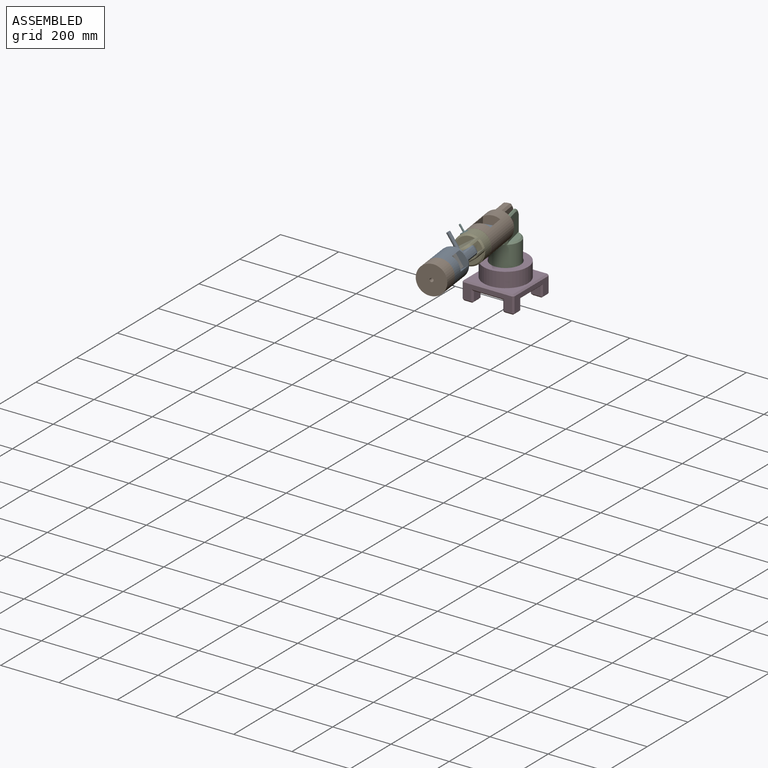
[diagram: assembled view]
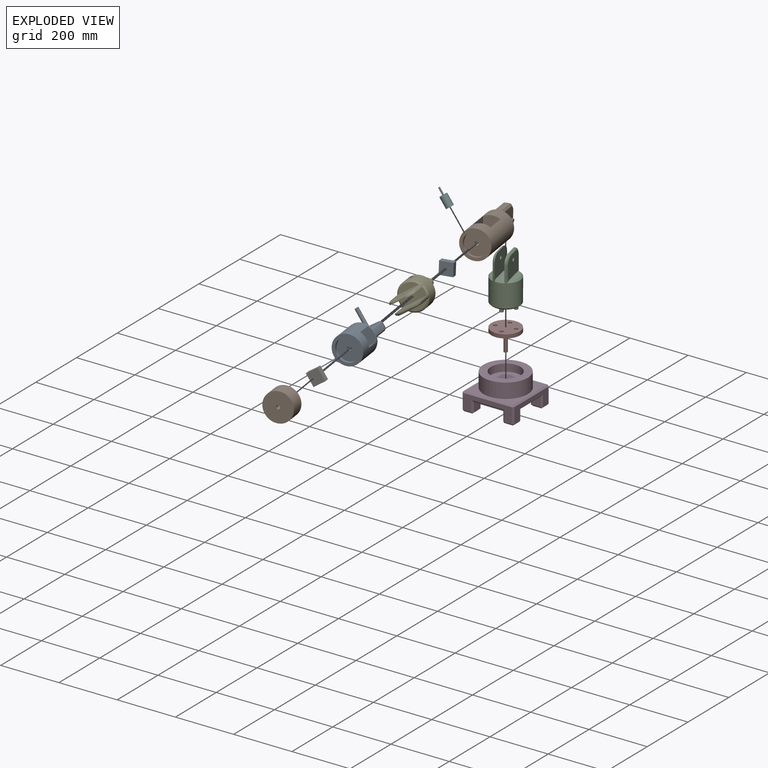
[diagram: exploded view]
GUIDED TOUR — MATED ASSEMBLY (Onshape document 129ffdcad40b1cba79273b75, AutoMate assembly 129ffdcad40b1cba79273b75_1272315f4acd24f75f276ad6_a967c928d47ce3181c894267_default)

This assembly has 10 components, labeled P0..P9 below (a component is one placed occurrence of a part; the same part can appear more than once), held together by 9 mates. A mate is a constraint between two components; its type names the relative motion it leaves free:
  FASTENED — locks the two components together rigidly (no relative motion),
  REVOLUTE — leaves rotation about the listed axis free (a hinge).
Axis/direction vectors are unit vectors and 'through' points are millimeter coordinates, both in the assembly's world frame.

MATES
  1. FASTENED "Fastened 1": P2 <-> P7, direction (0.000, 0.000, -1.000) through (2.02, -32.65, 1.83) mm
  2. FASTENED "Fastened 3": P0 <-> P1, direction (-0.222, 0.971, -0.087) through (20.39, -112.69, 164.19) mm
  3. FASTENED "Fastened 5": P5 <-> P4, direction (-0.555, -0.052, 0.830) through (23.26, -247.03, 216.88) mm
  4. REVOLUTE "Revolute 3": P4 <-> P1, axis (-0.222, 0.971, -0.087) through (43.55, -213.81, 173.27) mm
  5. REVOLUTE "Revolute 5": P9 <-> P8, axis (-0.179, 0.982, -0.057) through (93.97, -462.67, 191.23) mm
  6. REVOLUTE "Revolute 6": P7 <-> P3, axis (0.000, 0.000, -1.000) through (-5.07, -1.70, 1.83) mm
  7. REVOLUTE "Revolute 2": P1 <-> P2, axis (0.975, 0.223, 0.000) through (17.67, 3.50, 154.23) mm
  8. REVOLUTE "Revolute 4": P8 <-> P4, axis (0.555, 0.052, -0.830) through (81.48, -321.73, 163.70) mm
  9. FASTENED "Fastened 2": P6 <-> P8, direction (-0.179, 0.982, -0.057) through (83.87, -383.23, 189.51) mm

ASSEMBLY ORDER
  1. P1 — the base component [order heuristic]
  2. P2 — core [order heuristic]
  3. P0 [order verified]
  4. P5 — core [order heuristic]
  5. P7 — core [order heuristic]
  6. P4 — core [order heuristic]
  7. P3 — core [order heuristic]
  8. P8 — core [order heuristic]
  9. P6 — core [order heuristic]
  10. P9 — core [order heuristic]
Order-tag legend:
  [order verified] — this step's position reverses a verified removal order: the component was checked to insert without passing through the ones already placed.
  [order heuristic] — the first 9 components form the assembly's core: parts whose collision-free extraction could not be verified, listed in mate-graph order.

Of the 10 components, 7 carry the full construction recipe — the FeatureScript program that regenerates the part's solid from scratch; the rest are supplied as boundary geometry only.
Each toured component is shown spotlighted twice — in the assembled view, then in the exploded view, where a leader line traces a displaced component back to its assembled socket (saturated green if recipe-attached, orange if geometry-only; every other component desaturated gray) — followed by its recipe or geometry summary and the mates that hold it.
NOTE — this tour is split across 2 documents so each fits a 32k-token context. This is document 1: the component sections continue in the remaining 1 document, each repeating the header above.
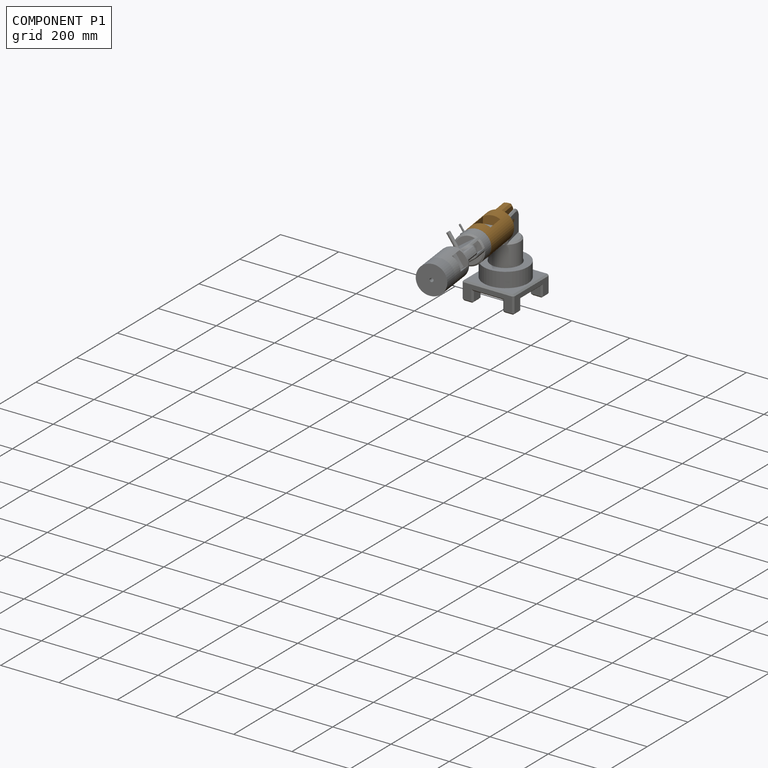
[diagram: component P1 — assembled]
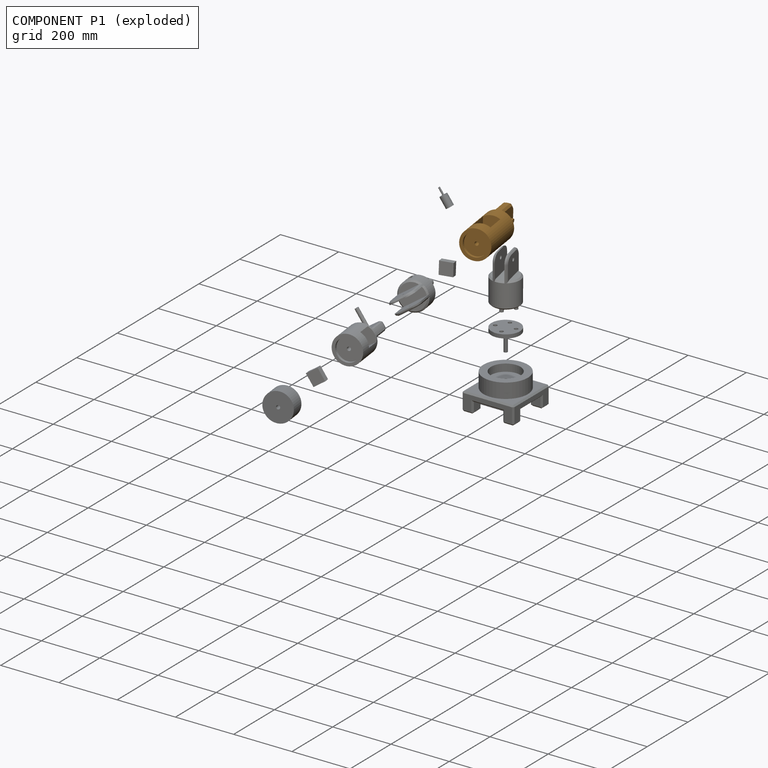
[diagram: component P1 — exploded]
COMPONENT P1 — geometry summary (no construction recipe available for this part):
  bounding box: 254.0 x 97.8 x 97.8 mm
  B-rep topology: 1 solid, 33 faces, 146 edges
  volume: 1208341 mm^3 (50% of its bounding box)
  symmetry: mirror-symmetric across its x mid-plane
Held by: FASTENED mate "Fastened 3" to P0; REVOLUTE mate "Revolute 3" to P4; REVOLUTE mate "Revolute 2" to P2.
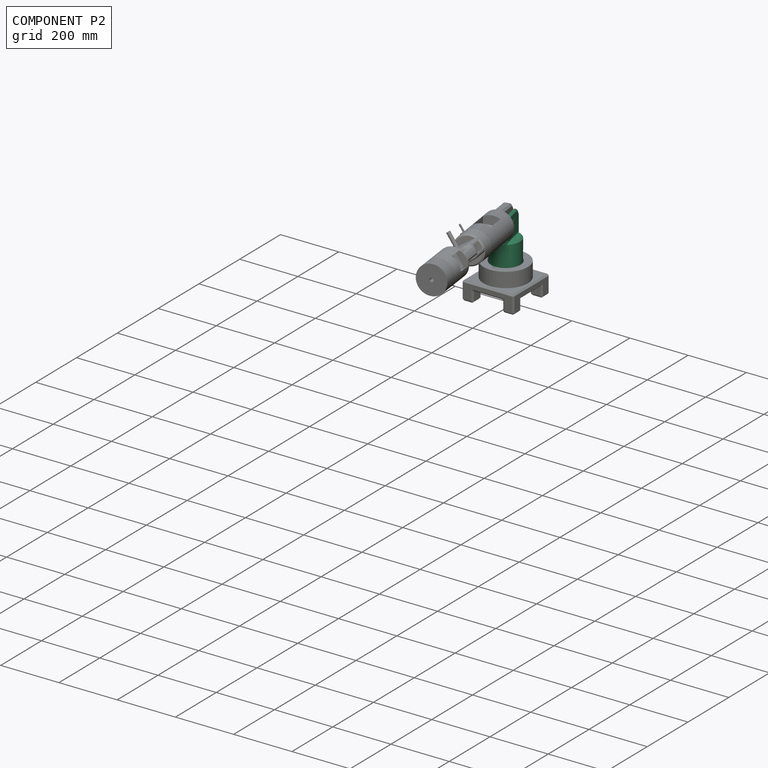
[diagram: component P2 — assembled]
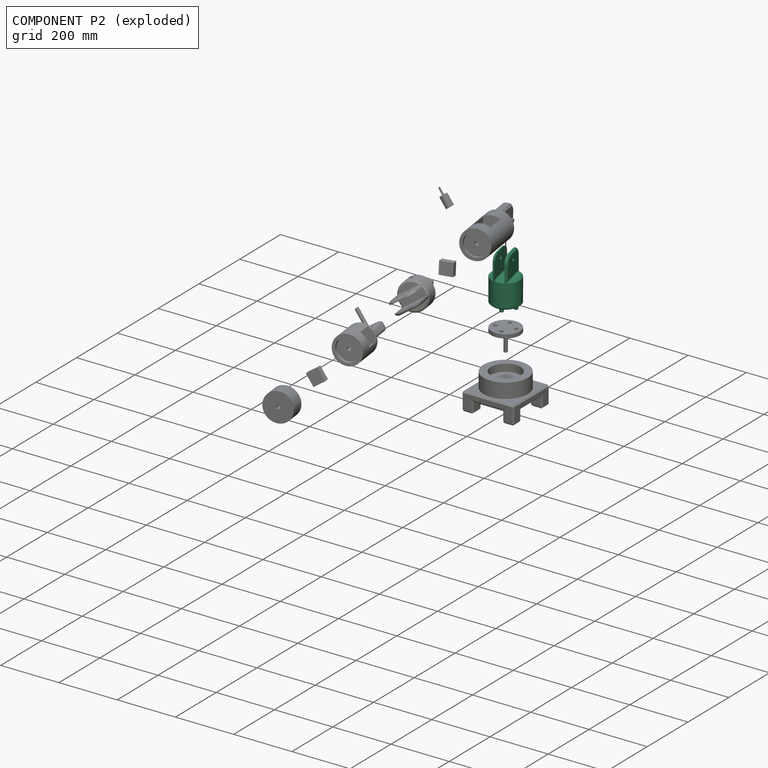
[diagram: component P2 — exploded]
COMPONENT P2 — recipe-attached (CADFS 00554223, mesh-verified: the recipe's output STEP matches this component's geometry to below the mesh-comparison resolution (tessellation chordal tolerance ~0.338 mm)).
Held by: FASTENED mate "Fastened 1" to P7; REVOLUTE mate "Revolute 2" to P1.
Construction recipe (FeatureScript — the CAD program that rebuilds this solid; sketch coordinates are in the units given by the * unit suffixes, e.g. mm):

FeatureScript 1977;
import(path : "onshape/std/geometry.fs", version : "1977.0");
import(path : "onshape/std/common.fs", version : "1977.0");
const mm = millimeter;
const VERTEX = EntityType.VERTEX;
const EDGE = EntityType.EDGE;
const FACE = EntityType.FACE;
const BODY = EntityType.BODY;
function v(x, y){return vector(x, y);}
function OD(order){return orderDisambiguation(order);}
function OSD(set){return originalSetDisambiguation(set);}
function TD(topology){return topologyDisambiguation(topology);}
function TDD(query){return trueDependencyDisambiguation(query);}
function sQuery(a, b, c) {return sketchEntityQuery(a, b, c);}

annotation { "Feature Type Name" : "Feature", "Feature Type Description" : "" }
export const myFeature = defineFeature(function(context is Context, id is Id, definition is map)
    precondition{}
    {
        {
            var Q0;
            Q0=qCreatedBy(makeId("Top.planeOp"),FACE);
            var sketch = newSketch(context, id + "F0", { "sketchPlane" : qUnion([Q0])});
            skCircle(sketch, "E0", {"center": v(0, 0) * mm, "radius": 48.9 * mm});
            skCircle(sketch, "E1", {"center": v(0, 0) * mm, "radius": 31.75 * mm});
            skCircle(sketch, "E2", {"center": v(0, -31.75) * mm, "radius": 6.35 * mm});
            skCircle(sketch, "E3", {"center": v(-31.75, 0) * mm, "radius": 6.35 * mm});
            skCircle(sketch, "E4", {"center": v(31.75, 0) * mm, "radius": 6.35 * mm});
            skCircle(sketch, "E5", {"center": v(0, 31.75) * mm, "radius": 6.35 * mm});
            skSolve(sketch);
        }
        {
            var Q0;
            Q0=makeQuery(id+"F0.imprint","IMPRINT",FACE,{"disambiguationData":[TD([[makeQuery(id+"F0.imprint","IMPRINT",EDGE,{"derivedFrom":sQuery(id+"F0.wireOp",EDGE,"E0")}),1.0]])]});
            var Q1;
            {var subQ0=sQuery(id+"F0.wireOp",EDGE,"E3");var subQ1=sQuery(id+"F0.wireOp",EDGE,"E1");var subQ2=makeQuery(id+"F0.imprint","INTERSECT",VERTEX,{"disambiguationData":[OD(0.0)],"derivedFrom":[subQ1,subQ0]});Q1=makeQuery(id+"F0.imprint","IMPRINT",FACE,{"disambiguationData":[TD([[makeQuery(id+"F0.imprint","IMPRINT",EDGE,{"disambiguationData":[TD([[subQ2,-1.0]])],"derivedFrom":subQ1}),1.0]])]});}
            var Q2;
            {var subQ0=sQuery(id+"F0.wireOp",EDGE,"E5");var subQ1=sQuery(id+"F0.wireOp",EDGE,"E1");var subQ2=makeQuery(id+"F0.imprint","INTERSECT",VERTEX,{"disambiguationData":[OD(0.0)],"derivedFrom":[subQ1,subQ0]});Q2=makeQuery(id+"F0.imprint","IMPRINT",FACE,{"disambiguationData":[TD([[makeQuery(id+"F0.imprint","IMPRINT",EDGE,{"disambiguationData":[TD([[subQ2,-1.0]])],"derivedFrom":subQ1}),-1.0]])]});}
            var Q3;
            {var subQ0=sQuery(id+"F0.wireOp",EDGE,"E5");var subQ1=sQuery(id+"F0.wireOp",EDGE,"E1");var subQ2=makeQuery(id+"F0.imprint","INTERSECT",VERTEX,{"disambiguationData":[OD(0.0)],"derivedFrom":[subQ1,subQ0]});Q3=makeQuery(id+"F0.imprint","IMPRINT",FACE,{"disambiguationData":[TD([[makeQuery(id+"F0.imprint","IMPRINT",EDGE,{"disambiguationData":[TD([[subQ2,-1.0]])],"derivedFrom":subQ1}),1.0]])]});}
            var Q4;
            {var subQ0=sQuery(id+"F0.wireOp",EDGE,"E2");var subQ1=sQuery(id+"F0.wireOp",EDGE,"E1");var subQ2=makeQuery(id+"F0.imprint","INTERSECT",VERTEX,{"disambiguationData":[OD(0.0)],"derivedFrom":[subQ1,subQ0]});Q4=makeQuery(id+"F0.imprint","IMPRINT",FACE,{"disambiguationData":[TD([[makeQuery(id+"F0.imprint","IMPRINT",EDGE,{"disambiguationData":[TD([[subQ2,-1.0]])],"derivedFrom":subQ1}),1.0]])]});}
            var Q5;
            {var subQ0=sQuery(id+"F0.wireOp",EDGE,"E2");var subQ1=sQuery(id+"F0.wireOp",EDGE,"E1");var subQ2=makeQuery(id+"F0.imprint","INTERSECT",VERTEX,{"disambiguationData":[OD(0.0)],"derivedFrom":[subQ1,subQ0]});Q5=makeQuery(id+"F0.imprint","IMPRINT",FACE,{"disambiguationData":[TD([[makeQuery(id+"F0.imprint","IMPRINT",EDGE,{"disambiguationData":[TD([[subQ2,-1.0]])],"derivedFrom":subQ1}),-1.0]])]});}
            var Q6;
            {var subQ0=sQuery(id+"F0.wireOp",EDGE,"E4");var subQ1=sQuery(id+"F0.wireOp",EDGE,"E1");var subQ2=makeQuery(id+"F0.imprint","INTERSECT",VERTEX,{"disambiguationData":[OD(0.0)],"derivedFrom":[subQ1,subQ0]});Q6=makeQuery(id+"F0.imprint","IMPRINT",FACE,{"disambiguationData":[TD([[makeQuery(id+"F0.imprint","IMPRINT",EDGE,{"disambiguationData":[TD([[subQ2,1.0]])],"derivedFrom":subQ1}),1.0]])]});}
            var Q7;
            {var subQ0=sQuery(id+"F0.wireOp",EDGE,"E4");var subQ1=sQuery(id+"F0.wireOp",EDGE,"E1");var subQ2=makeQuery(id+"F0.imprint","INTERSECT",VERTEX,{"disambiguationData":[OD(0.0)],"derivedFrom":[subQ1,subQ0]});Q7=makeQuery(id+"F0.imprint","IMPRINT",FACE,{"disambiguationData":[TD([[makeQuery(id+"F0.imprint","IMPRINT",EDGE,{"disambiguationData":[TD([[subQ2,1.0]])],"derivedFrom":subQ1}),-1.0]])]});}
            var Q8;
            {var subQ0=sQuery(id+"F0.wireOp",EDGE,"E3");var subQ1=sQuery(id+"F0.wireOp",EDGE,"E1");var subQ2=makeQuery(id+"F0.imprint","INTERSECT",VERTEX,{"disambiguationData":[OD(0.0)],"derivedFrom":[subQ1,subQ0]});Q8=makeQuery(id+"F0.imprint","IMPRINT",FACE,{"disambiguationData":[TD([[makeQuery(id+"F0.imprint","IMPRINT",EDGE,{"disambiguationData":[TD([[subQ2,-1.0]])],"derivedFrom":subQ1}),-1.0]])]});}
            var Q9;
            {var subQ1=sQuery(id+"F0.wireOp",EDGE,"E1");var subQ8=sQuery(id+"F0.wireOp",EDGE,"E5");var subQ11=makeQuery(id+"F0.imprint","INTERSECT",VERTEX,{"disambiguationData":[OD(0.0)],"derivedFrom":[subQ1,subQ8]});Q9=makeQuery(id+"F0.imprint","IMPRINT",FACE,{"disambiguationData":[TD([[makeQuery(id+"F0.imprint","IMPRINT",EDGE,{"disambiguationData":[TD([[subQ11,1.0]])],"derivedFrom":subQ1}),1.0]])]});}
            extrude(context, id + "F1", {"entities" : qUnion([Q0, Q1, Q2, Q3, Q4, Q5, Q6, Q7, Q8, Q9]), "depth" : 88.9 * mm, "offsetDistance" : 25.4 * mm});
        }
        {
            var Q0;
            Q0=makeQuery(id+"F1.opExtrude","CAP_FACE",FACE,{"disambiguationData":[OSD([sQuery(id+"F0.wireOp",EDGE,"E0")])],"isStart":true});
            var sketch = newSketch(context, id + "F2", { "sketchPlane" : qUnion([Q0])});
            skCircle(sketch, "E6", {"center": v(-31.75, 0) * mm, "radius": 6.35 * mm});
            skCircle(sketch, "E7", {"center": v(0, 31.75) * mm, "radius": 6.35 * mm});
            skCircle(sketch, "E8", {"center": v(31.75, 0) * mm, "radius": 6.35 * mm});
            skCircle(sketch, "E9", {"center": v(0, -31.75) * mm, "radius": 6.35 * mm});
            skSolve(sketch);
        }
        {
            var Q0;
            Q0 = qSketchRegion(id + "F2", true);
            extrude(context, id + "F3", {"entities" : qUnion([Q0]), "operationType" : NewBodyOperationType.ADD, "depth" : 12.7 * mm, "offsetDistance" : 25.4 * mm});
        }
        {
            var Q0;
            Q0=makeQuery(id+"F1.opExtrude","CAP_FACE",FACE,{"disambiguationData":[OSD([sQuery(id+"F0.wireOp",EDGE,"E0")])],"isStart":false});
            var sketch = newSketch(context, id + "F4", { "sketchPlane" : qUnion([Q0])});
            skLineSegment(sketch, "E10", {"start": v(0, 0) * mm, "end": v(-19.05, 0) * mm});
            skLineSegment(sketch, "E11", {"start": v(0, 0) * mm, "end": v(19.05, 0) * mm});
            skLineSegment(sketch, "E12.bottom", {"start": v(-23.33, 46.6) * mm, "end": v(-14.77, 46.6) * mm});
            skLineSegment(sketch, "E12.top", {"start": v(-23.33, -46.6) * mm, "end": v(-14.77, -46.6) * mm});
            skLineSegment(sketch, "E12.left", {"start": v(-23.33, 46.6) * mm, "end": v(-23.33, -46.6) * mm});
            skLineSegment(sketch, "E12.right", {"start": v(-14.77, 46.6) * mm, "end": v(-14.77, -46.6) * mm});
            skPoint(sketch, "E12.middle", {"position": v(-19.05, 0) * mm});
            skLineSegment(sketch, "E13.bottom", {"start": v(14.78, 46.6) * mm, "end": v(23.32, 46.6) * mm});
            skLineSegment(sketch, "E13.top", {"start": v(14.78, -46.6) * mm, "end": v(23.32, -46.6) * mm});
            skLineSegment(sketch, "E13.left", {"start": v(14.78, 46.6) * mm, "end": v(14.78, -46.6) * mm});
            skLineSegment(sketch, "E13.right", {"start": v(23.32, 46.6) * mm, "end": v(23.32, -46.6) * mm});
            skPoint(sketch, "E13.middle", {"position": v(19.05, 0) * mm});
            skSolve(sketch);
        }
        {
            var Q0;
            Q0 = qSketchRegion(id + "F4", true);
            extrude(context, id + "F5", {"entities" : qUnion([Q0]), "operationType" : NewBodyOperationType.ADD, "depth" : 76.2 * mm, "offsetDistance" : 25.4 * mm});
        }
        {
            var Q0;
            {var subQ2=sQuery(id+"F4.wireOp",EDGE,"E12.bottom");var subQ3=sQuery(id+"F0.wireOp",EDGE,"E0");Q0=makeQuery(id+"F5.boolean.opBoolean","SPLIT",FACE,{"disambiguationData":[TD([makeQuery(id+"F5.opExtrude","SWEPT_FACE",FACE,{"disambiguationData":[OSD([subQ2])]})])],"derivedFrom":makeQuery(id+"F1.opExtrude","CAP_FACE",FACE,{"disambiguationData":[OSD([subQ3])],"isStart":false})});}
            var sketch = newSketch(context, id + "F6", { "sketchPlane" : qUnion([Q0])});
            skCircle(sketch, "E14", {"center": v(0, 0) * mm, "radius": 48.9 * mm});
            skCircle(sketch, "E15", {"center": v(0, 0) * mm, "radius": 53.8 * mm});
            skSolve(sketch);
        }
        {
            var Q0;
            Q0=makeQuery(id+"F6.imprint","IMPRINT",FACE,{"disambiguationData":[TD([[makeQuery(id+"F6.imprint","IMPRINT",EDGE,{"derivedFrom":sQuery(id+"F6.wireOp",EDGE,"E15")}),1.0]])]});
            extrude(context, id + "F7", {"entities" : qUnion([Q0]), "operationType" : NewBodyOperationType.REMOVE, "depth" : 106.17 * mm, "offsetDistance" : 25.4 * mm});
        }
        {
            var Q0;
            Q0=makeQuery(id+"F7.boolean.opBoolean","INTERSECT",EDGE,{"disambiguationData":[OD(1.0)],"derivedFrom":[makeQuery(id+"F5.opExtrude","CAP_FACE",FACE,{"disambiguationData":[OSD([sQuery(id+"F4.wireOp",EDGE,"E13.bottom"),sQuery(id+"F4.wireOp",EDGE,"E13.top"),sQuery(id+"F4.wireOp",EDGE,"E13.left"),sQuery(id+"F4.wireOp",EDGE,"E13.right")])],"isStart":false}),makeQuery(id+"F7.opExtrude","SWEPT_FACE",FACE,{"disambiguationData":[OSD([sQuery(id+"F6.wireOp",EDGE,"E14")])]})]});
            var Q1;
            Q1=makeQuery(id+"F7.boolean.opBoolean","INTERSECT",EDGE,{"disambiguationData":[OD(0.0)],"derivedFrom":[makeQuery(id+"F5.opExtrude","CAP_FACE",FACE,{"disambiguationData":[OSD([sQuery(id+"F4.wireOp",EDGE,"E13.bottom"),sQuery(id+"F4.wireOp",EDGE,"E13.top"),sQuery(id+"F4.wireOp",EDGE,"E13.left"),sQuery(id+"F4.wireOp",EDGE,"E13.right")])],"isStart":false}),makeQuery(id+"F7.opExtrude","SWEPT_FACE",FACE,{"disambiguationData":[OSD([sQuery(id+"F6.wireOp",EDGE,"E14")])]})]});
            fillet(context, id + "F8", {"entities" : qUnion([Q0, Q1]), "radius" : 25.4 * mm, "tangentPropagation" : true, "allowEdgeOverflow" : false});
        }
        {
            var Q0;
            Q0=makeQuery(id+"F7.boolean.opBoolean","INTERSECT",EDGE,{"disambiguationData":[OD(0.0)],"derivedFrom":[makeQuery(id+"F5.opExtrude","CAP_FACE",FACE,{"disambiguationData":[OSD([sQuery(id+"F4.wireOp",EDGE,"E12.bottom"),sQuery(id+"F4.wireOp",EDGE,"E12.top"),sQuery(id+"F4.wireOp",EDGE,"E12.left"),sQuery(id+"F4.wireOp",EDGE,"E12.right")])],"isStart":false}),makeQuery(id+"F7.opExtrude","SWEPT_FACE",FACE,{"disambiguationData":[OSD([sQuery(id+"F6.wireOp",EDGE,"E14")])]})]});
            var Q1;
            Q1=makeQuery(id+"F7.boolean.opBoolean","INTERSECT",EDGE,{"disambiguationData":[OD(1.0)],"derivedFrom":[makeQuery(id+"F5.opExtrude","CAP_FACE",FACE,{"disambiguationData":[OSD([sQuery(id+"F4.wireOp",EDGE,"E12.bottom"),sQuery(id+"F4.wireOp",EDGE,"E12.top"),sQuery(id+"F4.wireOp",EDGE,"E12.left"),sQuery(id+"F4.wireOp",EDGE,"E12.right")])],"isStart":false}),makeQuery(id+"F7.opExtrude","SWEPT_FACE",FACE,{"disambiguationData":[OSD([sQuery(id+"F6.wireOp",EDGE,"E14")])]})]});
            fillet(context, id + "F9", {"entities" : qUnion([Q0, Q1]), "radius" : 25.4 * mm, "tangentPropagation" : true, "allowEdgeOverflow" : false});
        }
        {
            var Q0;
            Q0=makeQuery(id+"F5.opExtrude","SWEPT_FACE",FACE,{"disambiguationData":[OSD([sQuery(id+"F4.wireOp",EDGE,"E13.right")])]});
            var sketch = newSketch(context, id + "F10", { "sketchPlane" : qUnion([Q0])});
            skLineSegment(sketch, "E16", {"start": v(0, 88.9) * mm, "end": v(0, 139.7) * mm});
            skPoint(sketch, "E16.endSnap0", {"position": v(0, 88.9) * mm});
            skCircle(sketch, "E17", {"center": v(0, 139.7) * mm, "radius": 6.35 * mm});
            skSolve(sketch);
        }
        {
            var Q0;
            Q0=makeQuery(id+"F10.imprint","IMPRINT",FACE,{"disambiguationData":[TD([[makeQuery(id+"F10.imprint","IMPRINT",EDGE,{"derivedFrom":sQuery(id+"F10.wireOp",EDGE,"E17")}),1.0]])]});
            extrude(context, id + "F11", {"entities" : qUnion([Q0]), "operationType" : NewBodyOperationType.REMOVE, "oppositeDirection" : true, "depth" : 96.52 * mm, "offsetDistance" : 25.4 * mm});
        }
        {
            var Q0;
            {var subQ0=sQuery(id+"F0.wireOp",EDGE,"E0");var subQ1=makeQuery(id+"F1.opExtrude","SWEPT_FACE",FACE,{"disambiguationData":[OSD([subQ0])]});var subQ2=makeQuery(id+"F1.opExtrude","CAP_FACE",FACE,{"disambiguationData":[OSD([subQ0])],"isStart":false});var subQ3=sQuery(id+"F4.wireOp",EDGE,"E13.right");Q0=makeQuery(id+"F5.boolean.opBoolean","SPLIT",EDGE,{"disambiguationData":[topologyDisambiguationEdgeConnected([subQ1,subQ2]),TD([makeQuery(id+"F5.opExtrude","SWEPT_FACE",FACE,{"disambiguationData":[OSD([subQ3])]})])],"derivedFrom":makeQuery(id+"F1.opExtrude","CAP_EDGE",EDGE,{"disambiguationData":[OSD([subQ0])],"isStart":false})});}
            var Q1;
            {var subQ0=sQuery(id+"F4.wireOp",EDGE,"E12.top");var subQ1=sQuery(id+"F0.wireOp",EDGE,"E0");var subQ2=makeQuery(id+"F1.opExtrude","CAP_FACE",FACE,{"disambiguationData":[OSD([subQ1])],"isStart":false});var subQ5=makeQuery(id+"F1.opExtrude","SWEPT_FACE",FACE,{"disambiguationData":[OSD([subQ1])]});Q1=makeQuery(id+"F5.boolean.opBoolean","SPLIT",EDGE,{"disambiguationData":[topologyDisambiguationEdgeConnected([subQ5,subQ2]),TD([makeQuery(id+"F5.opExtrude","SWEPT_FACE",FACE,{"disambiguationData":[OSD([subQ0])]})])],"derivedFrom":makeQuery(id+"F1.opExtrude","CAP_EDGE",EDGE,{"disambiguationData":[OSD([subQ1])],"isStart":false})});}
            var Q2;
            {var subQ0=sQuery(id+"F0.wireOp",EDGE,"E0");var subQ1=makeQuery(id+"F1.opExtrude","SWEPT_FACE",FACE,{"disambiguationData":[OSD([subQ0])]});var subQ2=makeQuery(id+"F1.opExtrude","CAP_FACE",FACE,{"disambiguationData":[OSD([subQ0])],"isStart":false});var subQ3=sQuery(id+"F4.wireOp",EDGE,"E12.left");Q2=makeQuery(id+"F5.boolean.opBoolean","SPLIT",EDGE,{"disambiguationData":[topologyDisambiguationEdgeConnected([subQ1,subQ2]),TD([makeQuery(id+"F5.opExtrude","SWEPT_FACE",FACE,{"disambiguationData":[OSD([subQ3])]})])],"derivedFrom":makeQuery(id+"F1.opExtrude","CAP_EDGE",EDGE,{"disambiguationData":[OSD([subQ0])],"isStart":false})});}
            var Q3;
            {var subQ0=sQuery(id+"F4.wireOp",EDGE,"E12.bottom");var subQ1=sQuery(id+"F0.wireOp",EDGE,"E0");var subQ2=makeQuery(id+"F1.opExtrude","CAP_FACE",FACE,{"disambiguationData":[OSD([subQ1])],"isStart":false});var subQ5=makeQuery(id+"F1.opExtrude","SWEPT_FACE",FACE,{"disambiguationData":[OSD([subQ1])]});Q3=makeQuery(id+"F5.boolean.opBoolean","SPLIT",EDGE,{"disambiguationData":[topologyDisambiguationEdgeConnected([subQ5,subQ2]),TD([makeQuery(id+"F5.opExtrude","SWEPT_FACE",FACE,{"disambiguationData":[OSD([subQ0])]})])],"derivedFrom":makeQuery(id+"F1.opExtrude","CAP_EDGE",EDGE,{"disambiguationData":[OSD([subQ1])],"isStart":false})});}
            var Q4;
            Q4=makeQuery(id+"F1.opExtrude","CAP_EDGE",EDGE,{"disambiguationData":[OSD([sQuery(id+"F0.wireOp",EDGE,"E0")])],"isStart":true});
            var Q5;
            Q5=makeQuery(id+"F7.boolean.opBoolean","INTERSECT",EDGE,{"disambiguationData":[OD(1.0)],"derivedFrom":[makeQuery(id+"F5.opExtrude","SWEPT_FACE",FACE,{"disambiguationData":[OSD([sQuery(id+"F4.wireOp",EDGE,"E12.left")])]}),makeQuery(id+"F7.opExtrude","SWEPT_FACE",FACE,{"disambiguationData":[OSD([sQuery(id+"F6.wireOp",EDGE,"E14")])]})]});
            var Q6;
            Q6=makeQuery(id+"F7.boolean.opBoolean","INTERSECT",EDGE,{"disambiguationData":[OD(1.0)],"derivedFrom":[makeQuery(id+"F5.opExtrude","SWEPT_FACE",FACE,{"disambiguationData":[OSD([sQuery(id+"F4.wireOp",EDGE,"E13.right")])]}),makeQuery(id+"F7.opExtrude","SWEPT_FACE",FACE,{"disambiguationData":[OSD([sQuery(id+"F6.wireOp",EDGE,"E14")])]})]});
            chamfer(context, id + "F12", {"entities" : qUnion([Q0, Q1, Q2, Q3, Q4, Q5, Q6]), "width" : 5.08 * mm, "tangentPropagation" : true});
        }
    });
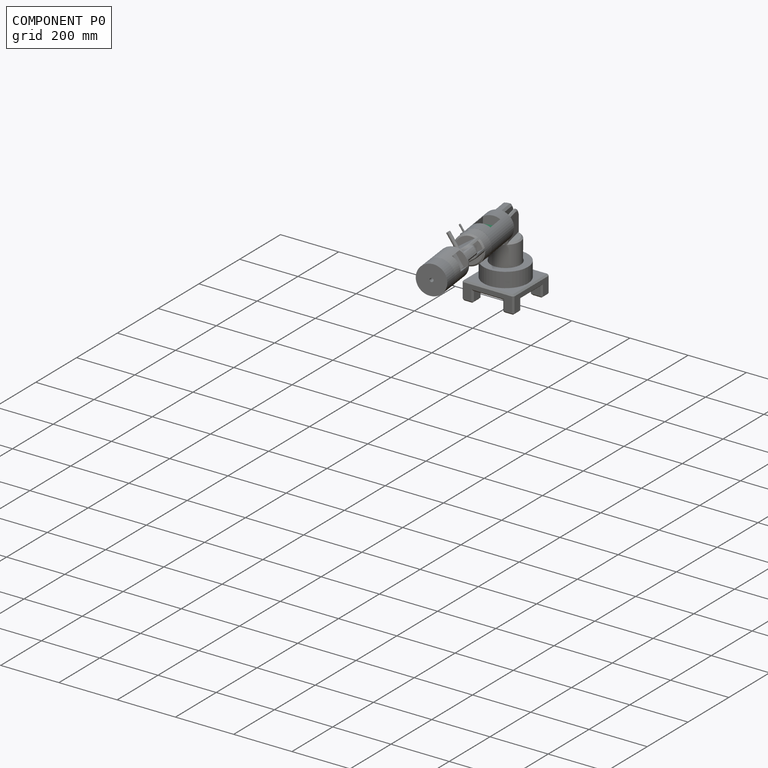
[diagram: component P0 — assembled]
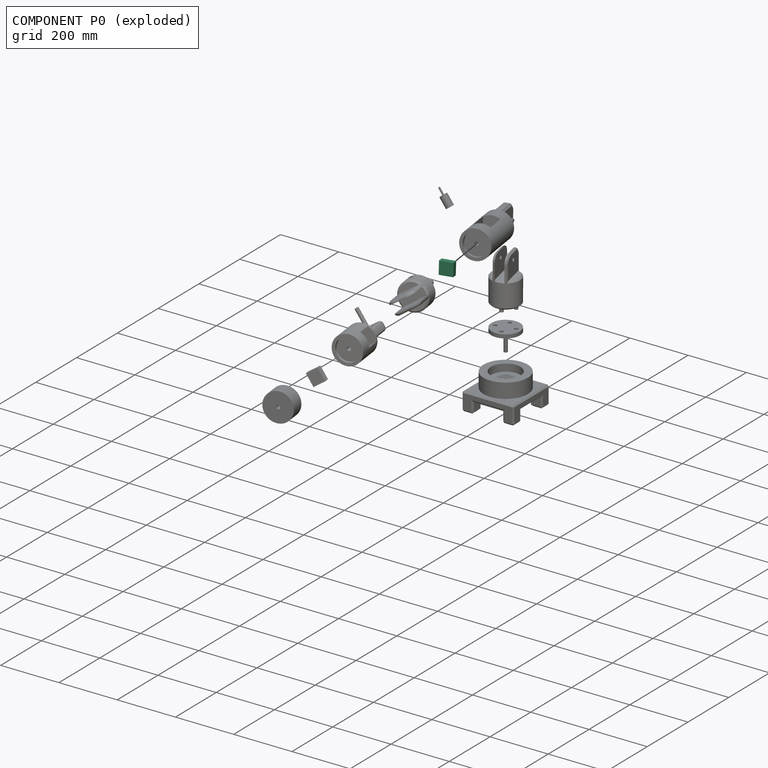
[diagram: component P0 — exploded]
COMPONENT P0 — recipe-attached (CADFS 00554226, mesh-verified: the recipe's output STEP matches this component's geometry to below the mesh-comparison resolution (tessellation chordal tolerance ~0.0969 mm)).
Held by: FASTENED mate "Fastened 3" to P1.
Construction recipe (FeatureScript — the CAD program that rebuilds this solid; sketch coordinates are in the units given by the * unit suffixes, e.g. mm):

FeatureScript 1977;
import(path : "onshape/std/geometry.fs", version : "1977.0");
import(path : "onshape/std/common.fs", version : "1977.0");
const mm = millimeter;
const VERTEX = EntityType.VERTEX;
const EDGE = EntityType.EDGE;
const FACE = EntityType.FACE;
const BODY = EntityType.BODY;
function v(x, y){return vector(x, y);}
function OD(order){return orderDisambiguation(order);}
function OSD(set){return originalSetDisambiguation(set);}
function TD(topology){return topologyDisambiguation(topology);}
function TDD(query){return trueDependencyDisambiguation(query);}
function sQuery(a, b, c) {return sketchEntityQuery(a, b, c);}

annotation { "Feature Type Name" : "Feature", "Feature Type Description" : "" }
export const myFeature = defineFeature(function(context is Context, id is Id, definition is map)
    precondition{}
    {
        {
            var Q0;
            Q0=qCreatedBy(makeId("Top.planeOp"),FACE);
            var sketch = newSketch(context, id + "F0", { "sketchPlane" : qUnion([Q0])});
            skLineSegment(sketch, "E0.bottom", {"start": v(0, 0) * mm, "end": v(44.4, 0) * mm});
            skLineSegment(sketch, "E0.top", {"start": v(0, 19) * mm, "end": v(44.4, 19) * mm});
            skLineSegment(sketch, "E0.left", {"start": v(0, 0) * mm, "end": v(0, 19) * mm});
            skLineSegment(sketch, "E0.right", {"start": v(44.4, 0) * mm, "end": v(44.4, 19) * mm});
            skSolve(sketch);
        }
        {
            var Q0;
            Q0 = qSketchRegion(id + "F0", true);
            extrude(context, id + "F1", {"entities" : qUnion([Q0]), "depth" : 42.93 * mm, "offsetDistance" : 25.4 * mm});
        }
    });
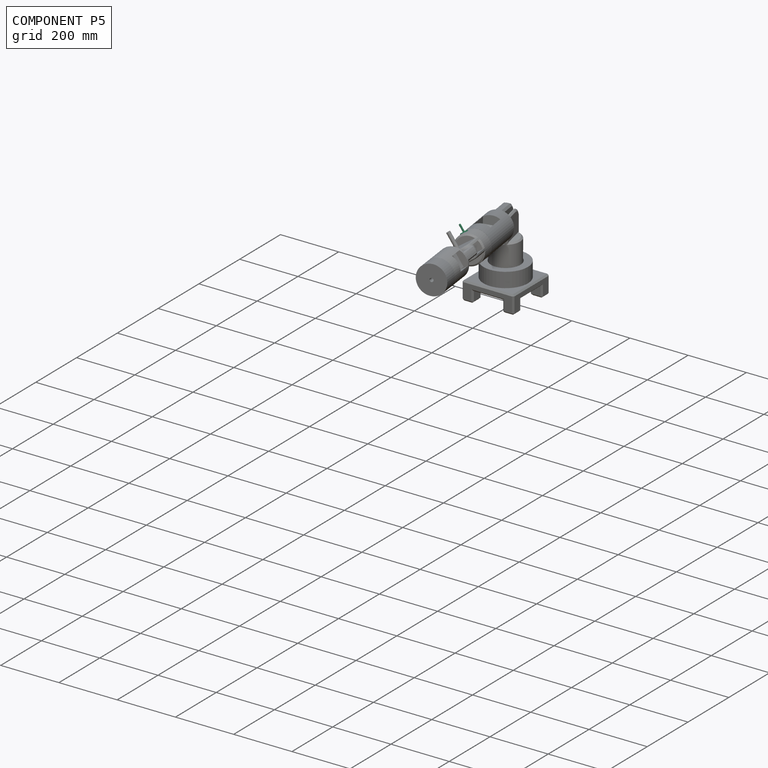
[diagram: component P5 — assembled]
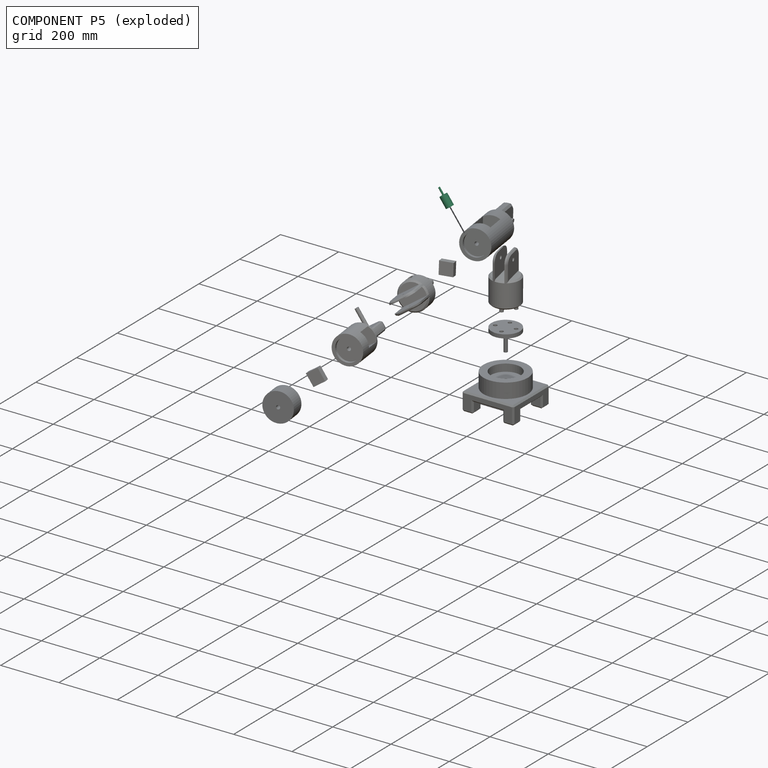
[diagram: component P5 — exploded]
COMPONENT P5 — recipe-attached (CADFS 00554227, mesh-verified: the recipe's output STEP matches this component's geometry to below the mesh-comparison resolution (tessellation chordal tolerance ~0.109 mm)).
Held by: FASTENED mate "Fastened 5" to P4.
Construction recipe (FeatureScript — the CAD program that rebuilds this solid; sketch coordinates are in the units given by the * unit suffixes, e.g. mm):

FeatureScript 1977;
import(path : "onshape/std/geometry.fs", version : "1977.0");
import(path : "onshape/std/common.fs", version : "1977.0");
const mm = millimeter;
const VERTEX = EntityType.VERTEX;
const EDGE = EntityType.EDGE;
const FACE = EntityType.FACE;
const BODY = EntityType.BODY;
function v(x, y){return vector(x, y);}
function OD(order){return orderDisambiguation(order);}
function OSD(set){return originalSetDisambiguation(set);}
function TD(topology){return topologyDisambiguation(topology);}
function TDD(query){return trueDependencyDisambiguation(query);}
function sQuery(a, b, c) {return sketchEntityQuery(a, b, c);}

annotation { "Feature Type Name" : "Feature", "Feature Type Description" : "" }
export const myFeature = defineFeature(function(context is Context, id is Id, definition is map)
    precondition{}
    {
        {
            var Q0;
            Q0=qCreatedBy(makeId("Right.planeOp"),FACE);
            var sketch = newSketch(context, id + "F0", { "sketchPlane" : qUnion([Q0])});
            skCircle(sketch, "E0", {"center": v(0, 0) * mm, "radius": 12.7 * mm});
            skSolve(sketch);
        }
        {
            var Q0;
            Q0 = qSketchRegion(id + "F0", true);
            extrude(context, id + "F1", {"entities" : qUnion([Q0]), "depth" : 38.1 * mm, "offsetDistance" : 25.4 * mm});
        }
        {
            var Q0;
            Q0=makeQuery(id+"F1.opExtrude","CAP_FACE",FACE,{"disambiguationData":[OSD([sQuery(id+"F0.wireOp",EDGE,"E0")])],"isStart":false});
            var sketch = newSketch(context, id + "F2", { "sketchPlane" : qUnion([Q0])});
            skCircle(sketch, "E1", {"center": v(0, 0) * mm, "radius": 2.92 * mm});
            skSolve(sketch);
        }
        {
            var Q0;
            Q0 = qSketchRegion(id + "F2", true);
            extrude(context, id + "F3", {"entities" : qUnion([Q0]), "operationType" : NewBodyOperationType.ADD, "depth" : 25.4 * mm, "offsetDistance" : 25.4 * mm});
        }
    });
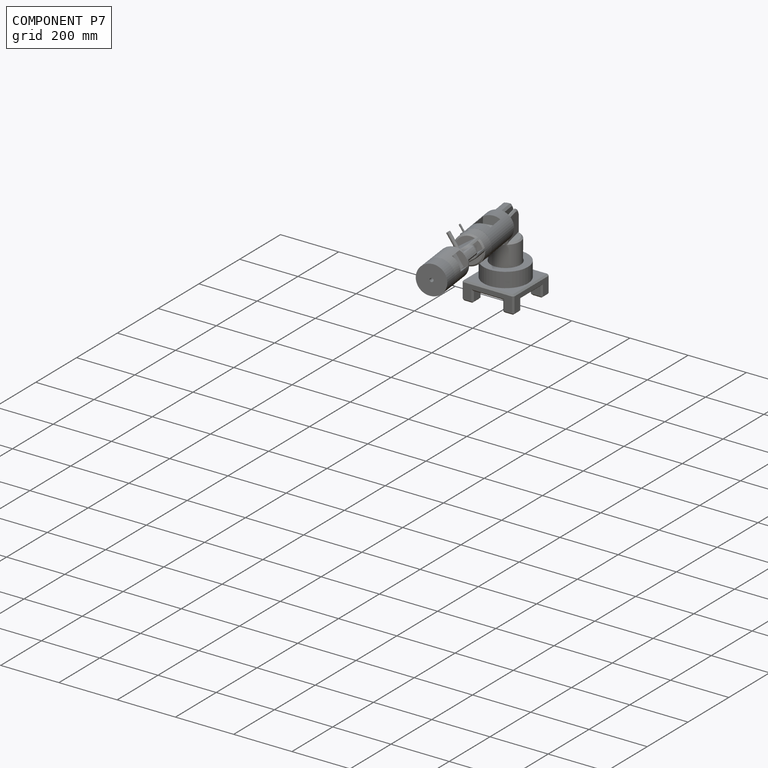
[diagram: component P7 — assembled]
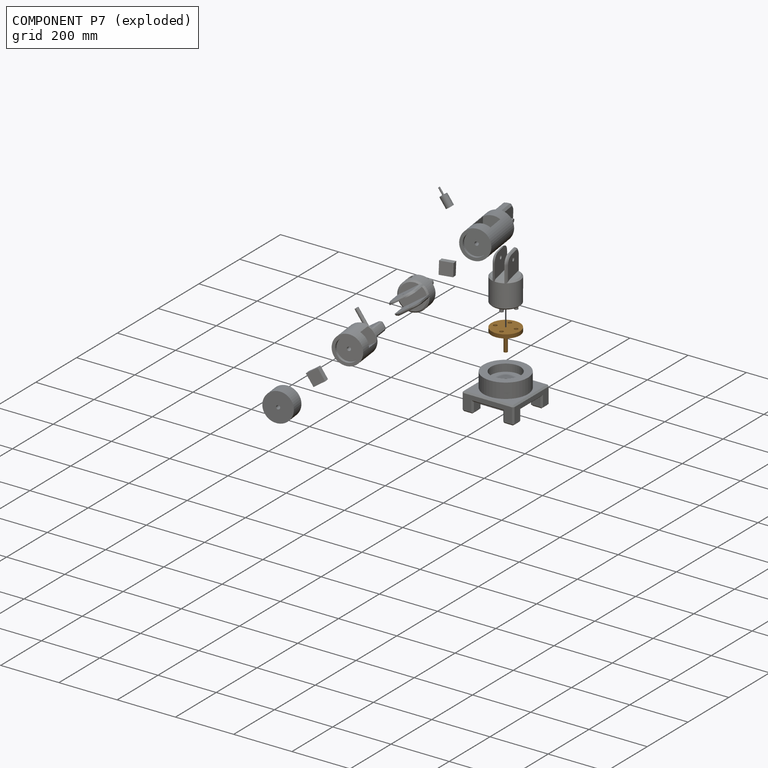
[diagram: component P7 — exploded]
COMPONENT P7 — geometry summary (no construction recipe available for this part):
  bounding box: 97.8 x 97.8 x 76.2 mm
  B-rep topology: 1 solid, 9 faces, 36 edges
  volume: 96519 mm^3 (13% of its bounding box)
  symmetry: 4-fold rotationally symmetric about the z axis; mirror-symmetric across its x mid-plane, y mid-plane
Held by: FASTENED mate "Fastened 1" to P2; REVOLUTE mate "Revolute 6" to P3.
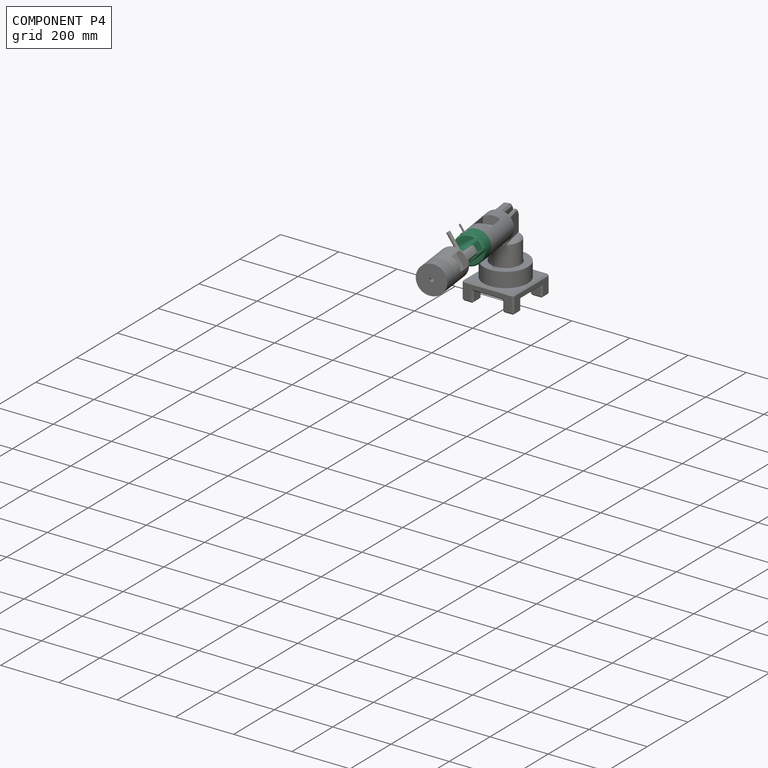
[diagram: component P4 — assembled]
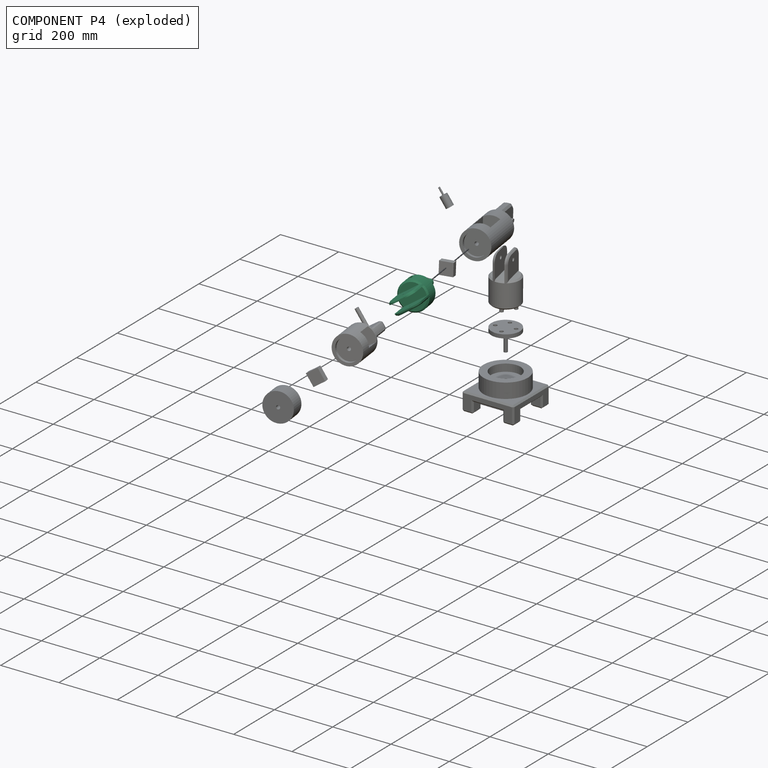
[diagram: component P4 — exploded]
COMPONENT P4 — recipe-attached (CADFS 00554222, mesh-verified: the recipe's output STEP matches this component's geometry to below the mesh-comparison resolution (tessellation chordal tolerance ~0.375 mm)).
Held by: FASTENED mate "Fastened 5" to P5; REVOLUTE mate "Revolute 3" to P1; REVOLUTE mate "Revolute 4" to P8.
Construction recipe (FeatureScript — the CAD program that rebuilds this solid; sketch coordinates are in the units given by the * unit suffixes, e.g. mm):

FeatureScript 1977;
import(path : "onshape/std/geometry.fs", version : "1977.0");
import(path : "onshape/std/common.fs", version : "1977.0");
const mm = millimeter;
const VERTEX = EntityType.VERTEX;
const EDGE = EntityType.EDGE;
const FACE = EntityType.FACE;
const BODY = EntityType.BODY;
function v(x, y){return vector(x, y);}
function OD(order){return orderDisambiguation(order);}
function OSD(set){return originalSetDisambiguation(set);}
function TD(topology){return topologyDisambiguation(topology);}
function TDD(query){return trueDependencyDisambiguation(query);}
function sQuery(a, b, c) {return sketchEntityQuery(a, b, c);}

annotation { "Feature Type Name" : "Feature", "Feature Type Description" : "" }
export const myFeature = defineFeature(function(context is Context, id is Id, definition is map)
    precondition{}
    {
        {
            var Q0;
            Q0=qCreatedBy(makeId("Top.planeOp"),FACE);
            var sketch = newSketch(context, id + "F0", { "sketchPlane" : qUnion([Q0])});
            skCircle(sketch, "E0", {"center": v(0, 0) * mm, "radius": 48.9 * mm});
            skCircle(sketch, "E1", {"center": v(0, 0) * mm, "radius": 38.1 * mm});
            skCircle(sketch, "E2", {"center": v(0, 0) * mm, "radius": 5.97 * mm});
            skSolve(sketch);
        }
        {
            var Q0;
            Q0=makeQuery(id+"F0.imprint","IMPRINT",FACE,{"disambiguationData":[TD([[makeQuery(id+"F0.imprint","IMPRINT",EDGE,{"derivedFrom":sQuery(id+"F0.wireOp",EDGE,"E1")}),1.0]])]});
            var Q1;
            Q1=makeQuery(id+"F0.imprint","IMPRINT",FACE,{"disambiguationData":[TD([[makeQuery(id+"F0.imprint","IMPRINT",EDGE,{"derivedFrom":sQuery(id+"F0.wireOp",EDGE,"E2")}),1.0]])]});
            extrude(context, id + "F1", {"entities" : qUnion([Q0, Q1]), "oppositeDirection" : true, "depth" : 10.8 * mm, "offsetDistance" : 25.4 * mm});
        }
        {
            var Q0;
            Q0=makeQuery(id+"F1.opExtrude","CAP_FACE",FACE,{"disambiguationData":[OSD([sQuery(id+"F0.wireOp",EDGE,"E1")])],"isStart":true});
            var sketch = newSketch(context, id + "F2", { "sketchPlane" : qUnion([Q0])});
            skCircle(sketch, "E3", {"center": v(0, 0) * mm, "radius": 48.9 * mm});
            skSolve(sketch);
        }
        {
            var Q0;
            Q0 = qSketchRegion(id + "F2", true);
            extrude(context, id + "F3", {"entities" : qUnion([Q0]), "operationType" : NewBodyOperationType.ADD, "depth" : 50.8 * mm, "offsetDistance" : 25.4 * mm});
        }
        {
            var Q0;
            Q0=makeQuery(id+"F1.opExtrude","CAP_FACE",FACE,{"disambiguationData":[OSD([sQuery(id+"F0.wireOp",EDGE,"E1")])],"isStart":false});
            var sketch = newSketch(context, id + "F4", { "sketchPlane" : qUnion([Q0])});
            skCircle(sketch, "E4", {"center": v(0, 0) * mm, "radius": 5.97 * mm});
            skSolve(sketch);
        }
        {
            var Q0;
            Q0 = qSketchRegion(id + "F4", true);
            extrude(context, id + "F5", {"entities" : qUnion([Q0]), "operationType" : NewBodyOperationType.ADD, "depth" : 70.87 * mm, "offsetDistance" : 25.4 * mm});
        }
        {
            var Q0;
            Q0=makeQuery(id+"F5.opExtrude","CAP_FACE",FACE,{"disambiguationData":[OSD([sQuery(id+"F4.wireOp",EDGE,"E4")])],"isStart":false});
            var sketch = newSketch(context, id + "F6", { "sketchPlane" : qUnion([Q0])});
            skCircle(sketch, "E5", {"center": v(0, 0) * mm, "radius": 10.44 * mm});
            skSolve(sketch);
        }
        {
            var Q0;
            Q0=makeQuery(id+"F6.imprint","IMPRINT",FACE,{"disambiguationData":[TD([[makeQuery(id+"F6.imprint","IMPRINT",EDGE,{"derivedFrom":sQuery(id+"F6.wireOp",EDGE,"E5")}),1.0]])]});
            extrude(context, id + "F7", {"entities" : qUnion([Q0]), "operationType" : NewBodyOperationType.ADD, "oppositeDirection" : true, "depth" : 22.86 * mm, "offsetDistance" : 25.4 * mm});
        }
        {
            var Q0;
            Q0=makeQuery(id+"F3.opExtrude","CAP_FACE",FACE,{"disambiguationData":[OSD([sQuery(id+"F2.wireOp",EDGE,"E3")])],"isStart":false});
            var sketch = newSketch(context, id + "F8", { "sketchPlane" : qUnion([Q0])});
            skLineSegment(sketch, "E6", {"start": v(0, 0) * mm, "end": v(19.05, 0) * mm});
            skLineSegment(sketch, "E7.bottom", {"start": v(23.33, 46.6) * mm, "end": v(14.77, 46.6) * mm});
            skLineSegment(sketch, "E7.top", {"start": v(23.33, -46.6) * mm, "end": v(14.77, -46.6) * mm});
            skLineSegment(sketch, "E7.left", {"start": v(23.33, 46.6) * mm, "end": v(23.33, -46.6) * mm});
            skLineSegment(sketch, "E7.right", {"start": v(14.77, 46.6) * mm, "end": v(14.77, -46.6) * mm});
            skPoint(sketch, "E7.middle", {"position": v(19.05, 0) * mm});
            skLineSegment(sketch, "E8", {"start": v(0, 0) * mm, "end": v(-19.05, 0) * mm});
            skLineSegment(sketch, "E9.bottom", {"start": v(-23.33, 46.6) * mm, "end": v(-14.77, 46.6) * mm});
            skLineSegment(sketch, "E9.top", {"start": v(-23.33, -46.6) * mm, "end": v(-14.77, -46.6) * mm});
            skLineSegment(sketch, "E9.left", {"start": v(-23.33, 46.6) * mm, "end": v(-23.33, -46.6) * mm});
            skLineSegment(sketch, "E9.right", {"start": v(-14.77, 46.6) * mm, "end": v(-14.77, -46.6) * mm});
            skPoint(sketch, "E9.middle", {"position": v(-19.05, 0) * mm});
            skSolve(sketch);
        }
        {
            var Q0;
            {var subQ0=sQuery(id+"F8.wireOp",EDGE,"E9.right");var subQ1=sQuery(id+"F8.wireOp",EDGE,"E9.bottom");var subQ2=makeQuery(id+"F8.imprint","INTERSECT",VERTEX,{"derivedFrom":[subQ1,subQ0]});Q0=makeQuery(id+"F8.imprint","IMPRINT",FACE,{"disambiguationData":[TD([[makeQuery(id+"F8.imprint","IMPRINT",EDGE,{"disambiguationData":[TD([[subQ2,1.0]])],"derivedFrom":subQ1}),-1.0]])]});}
            var Q1;
            {var subQ0=sQuery(id+"F8.wireOp",EDGE,"E7.right");var subQ1=sQuery(id+"F8.wireOp",EDGE,"E7.bottom");var subQ2=makeQuery(id+"F8.imprint","INTERSECT",VERTEX,{"derivedFrom":[subQ1,subQ0]});Q1=makeQuery(id+"F8.imprint","IMPRINT",FACE,{"disambiguationData":[TD([[makeQuery(id+"F8.imprint","IMPRINT",EDGE,{"disambiguationData":[TD([[subQ2,1.0]])],"derivedFrom":subQ1}),1.0]])]});}
            extrude(context, id + "F9", {"entities" : qUnion([Q0, Q1]), "operationType" : NewBodyOperationType.ADD, "depth" : 76.2 * mm, "offsetDistance" : 25.4 * mm});
        }
        {
            var Q0;
            {var subQ0=sQuery(id+"F2.wireOp",EDGE,"E3");var subQ1=makeQuery(id+"F3.opExtrude","CAP_EDGE",EDGE,{"disambiguationData":[OSD([subQ0])],"isStart":false});Q0=makeQuery(id+"F9.opExtrude","CAP_EDGE",EDGE,{"disambiguationData":[OSD([subQ0]),TDD([makeQuery(id+"F8.imprint","IMPRINT",EDGE,{"disambiguationData":[TD([[makeQuery(id+"F8.imprint","INTERSECT",VERTEX,{"derivedFrom":[subQ1,sQuery(id+"F8.wireOp",EDGE,"E9.top")]}),1.0]])],"derivedFrom":subQ1})])],"isStart":false});}
            var Q1;
            {var subQ0=sQuery(id+"F2.wireOp",EDGE,"E3");var subQ1=makeQuery(id+"F3.opExtrude","CAP_EDGE",EDGE,{"disambiguationData":[OSD([subQ0])],"isStart":false});Q1=makeQuery(id+"F9.opExtrude","CAP_EDGE",EDGE,{"disambiguationData":[OSD([subQ0]),TDD([makeQuery(id+"F8.imprint","IMPRINT",EDGE,{"disambiguationData":[TD([[makeQuery(id+"F8.imprint","INTERSECT",VERTEX,{"derivedFrom":[subQ1,sQuery(id+"F8.wireOp",EDGE,"E9.bottom")]}),-1.0]])],"derivedFrom":subQ1})])],"isStart":false});}
            var Q2;
            {var subQ0=sQuery(id+"F2.wireOp",EDGE,"E3");var subQ1=makeQuery(id+"F3.opExtrude","CAP_EDGE",EDGE,{"disambiguationData":[OSD([subQ0])],"isStart":false});Q2=makeQuery(id+"F9.opExtrude","CAP_EDGE",EDGE,{"disambiguationData":[OSD([subQ0]),TDD([makeQuery(id+"F8.imprint","IMPRINT",EDGE,{"disambiguationData":[TD([[makeQuery(id+"F8.imprint","INTERSECT",VERTEX,{"derivedFrom":[subQ1,sQuery(id+"F8.wireOp",EDGE,"E7.top")]}),-1.0]])],"derivedFrom":subQ1})])],"isStart":false});}
            var Q3;
            {var subQ0=sQuery(id+"F2.wireOp",EDGE,"E3");var subQ1=makeQuery(id+"F3.opExtrude","CAP_EDGE",EDGE,{"disambiguationData":[OSD([subQ0])],"isStart":false});Q3=makeQuery(id+"F9.opExtrude","CAP_EDGE",EDGE,{"disambiguationData":[OSD([subQ0]),TDD([makeQuery(id+"F8.imprint","IMPRINT",EDGE,{"disambiguationData":[TD([[makeQuery(id+"F8.imprint","INTERSECT",VERTEX,{"derivedFrom":[subQ1,sQuery(id+"F8.wireOp",EDGE,"E7.bottom")]}),1.0]])],"derivedFrom":subQ1})])],"isStart":false});}
            fillet(context, id + "F10", {"entities" : qUnion([Q0, Q1, Q2, Q3]), "radius" : 25.4 * mm, "tangentPropagation" : true, "allowEdgeOverflow" : false});
        }
        {
            var Q0;
            Q0=makeQuery(id+"F9.opExtrude","SWEPT_FACE",FACE,{"disambiguationData":[OSD([sQuery(id+"F8.wireOp",EDGE,"E9.left")])]});
            var sketch = newSketch(context, id + "F11", { "sketchPlane" : qUnion([Q0])});
            skLineSegment(sketch, "E10", {"start": v(0, 50.8) * mm, "end": v(0, 101.6) * mm});
            skPoint(sketch, "E10.endSnap0", {"position": v(0, 50.8) * mm});
            skCircle(sketch, "E11", {"center": v(0, 101.6) * mm, "radius": 6.35 * mm});
            skSolve(sketch);
        }
        {
            var Q0;
            Q0 = qSketchRegion(id + "F11", true);
            extrude(context, id + "F12", {"entities" : qUnion([Q0]), "operationType" : NewBodyOperationType.REMOVE, "oppositeDirection" : true, "depth" : 97.54 * mm, "offsetDistance" : 25.4 * mm});
        }
        {
            var Q0;
            Q0=makeQuery(id+"F1.opExtrude","SWEPT_BODY",BODY,{"disambiguationData":[OSD([sQuery(id+"F0.wireOp",EDGE,"E1")])]});
            transform(context, id + "F13", {"entities" : qUnion([Q0]), "transformType" : TransformType.TRANSLATION_3D, "dx" : 0 * mm, "dy" : 0 * mm, "dz" : 0 * mm, "makeCopy" : true});
        }
        {
            var Q0;
            Q0=makeQuery(id+"F13.opPattern","COPY",BODY,{"derivedFrom":makeQuery(id+"F1.opExtrude","SWEPT_BODY",BODY,{"disambiguationData":[OSD([sQuery(id+"F0.wireOp",EDGE,"E1")])]}),"instanceName":"1"});
            deleteBodies(context, id + "F14", {"entities" : qUnion([Q0])});
        }
        {
            var Q0;
            {var subQ1=sQuery(id+"F2.wireOp",EDGE,"E3");var subQ2=sQuery(id+"F8.wireOp",EDGE,"E7.top");var subQ3=makeQuery(id+"F3.opExtrude","CAP_EDGE",EDGE,{"disambiguationData":[OSD([subQ1])],"isStart":false});Q0=makeQuery(id+"F9.boolean.opBoolean","SPLIT",EDGE,{"disambiguationData":[TD([makeQuery(id+"F9.opExtrude","SWEPT_FACE",FACE,{"disambiguationData":[OSD([subQ2])]})])],"derivedFrom":subQ3});}
            var Q1;
            {var subQ0=sQuery(id+"F2.wireOp",EDGE,"E3");var subQ1=makeQuery(id+"F3.opExtrude","CAP_EDGE",EDGE,{"disambiguationData":[OSD([subQ0])],"isStart":false});var subQ3=sQuery(id+"F8.wireOp",EDGE,"E9.left");Q1=makeQuery(id+"F9.boolean.opBoolean","SPLIT",EDGE,{"disambiguationData":[TD([makeQuery(id+"F9.opExtrude","SWEPT_FACE",FACE,{"disambiguationData":[OSD([subQ3])]})])],"derivedFrom":subQ1});}
            var Q2;
            {var subQ0=sQuery(id+"F2.wireOp",EDGE,"E3");var subQ1=makeQuery(id+"F3.opExtrude","CAP_EDGE",EDGE,{"disambiguationData":[OSD([subQ0])],"isStart":false});var subQ2=sQuery(id+"F8.wireOp",EDGE,"E7.left");Q2=makeQuery(id+"F9.boolean.opBoolean","SPLIT",EDGE,{"disambiguationData":[TD([makeQuery(id+"F9.opExtrude","SWEPT_FACE",FACE,{"disambiguationData":[OSD([subQ2])]})])],"derivedFrom":subQ1});}
            var Q3;
            {var subQ1=sQuery(id+"F8.wireOp",EDGE,"E7.bottom");var subQ2=sQuery(id+"F2.wireOp",EDGE,"E3");var subQ3=makeQuery(id+"F3.opExtrude","CAP_EDGE",EDGE,{"disambiguationData":[OSD([subQ2])],"isStart":false});Q3=makeQuery(id+"F9.boolean.opBoolean","SPLIT",EDGE,{"disambiguationData":[TD([makeQuery(id+"F9.opExtrude","SWEPT_FACE",FACE,{"disambiguationData":[OSD([subQ1])]})])],"derivedFrom":subQ3});}
            var Q4;
            {var subQ0=sQuery(id+"F8.wireOp",EDGE,"E9.left");var subQ1=sQuery(id+"F2.wireOp",EDGE,"E3");var subQ2=makeQuery(id+"F3.opExtrude","CAP_EDGE",EDGE,{"disambiguationData":[OSD([subQ1])],"isStart":false});Q4=makeQuery(id+"F10.opFillet","BLEND_EDGE",EDGE,{"blendedFrom":[makeQuery(id+"F9.opExtrude","CAP_EDGE",EDGE,{"disambiguationData":[OSD([subQ1]),TDD([makeQuery(id+"F8.imprint","IMPRINT",EDGE,{"disambiguationData":[TD([[makeQuery(id+"F8.imprint","INTERSECT",VERTEX,{"derivedFrom":[subQ2,sQuery(id+"F8.wireOp",EDGE,"E9.top")]}),1.0]])],"derivedFrom":subQ2})])],"isStart":false}),makeQuery(id+"F9.opExtrude","SWEPT_FACE",FACE,{"disambiguationData":[OSD([subQ0])]})],"blendedInto":[makeQuery(id+"F9.opExtrude","SWEPT_FACE",FACE,{"disambiguationData":[OSD([subQ0])]})]});}
            var Q5;
            {var subQ0=sQuery(id+"F8.wireOp",EDGE,"E7.left");var subQ1=sQuery(id+"F2.wireOp",EDGE,"E3");Q5=makeQuery(id+"F9.opExtrude","SWEPT_EDGE",EDGE,{"disambiguationData":[OSD([subQ1,subQ0]),TDD([makeQuery(id+"F8.imprint","INTERSECT",VERTEX,{"disambiguationData":[OD(1.0)],"derivedFrom":[makeQuery(id+"F3.opExtrude","CAP_EDGE",EDGE,{"disambiguationData":[OSD([subQ1])],"isStart":false}),subQ0]})])]});}
            chamfer(context, id + "F15", {"entities" : qUnion([Q0, Q1, Q2, Q3, Q4, Q5]), "width" : 5.08 * mm, "tangentPropagation" : true});
        }
        {
            var Q0;
            Q0=qCreatedBy(makeId("Right.planeOp"),FACE);
            var sketch = newSketch(context, id + "F16", { "sketchPlane" : qUnion([Q0])});
            skCircle(sketch, "E12", {"center": v(0, 20.75) * mm, "radius": 12.7 * mm});
            skSolve(sketch);
        }
        {
            var Q0;
            Q0 = qSketchRegion(id + "F16", true);
            extrude(context, id + "F17", {"entities" : qUnion([Q0]), "operationType" : NewBodyOperationType.REMOVE, "oppositeDirection" : true, "depth" : 107.7 * mm, "offsetDistance" : 25.4 * mm});
        }
    });
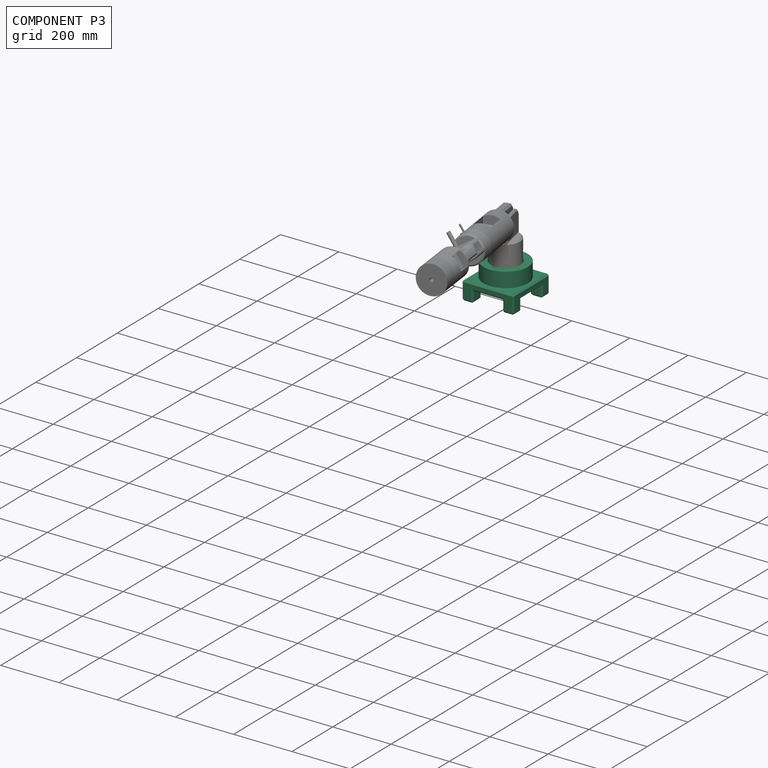
[diagram: component P3 — assembled]
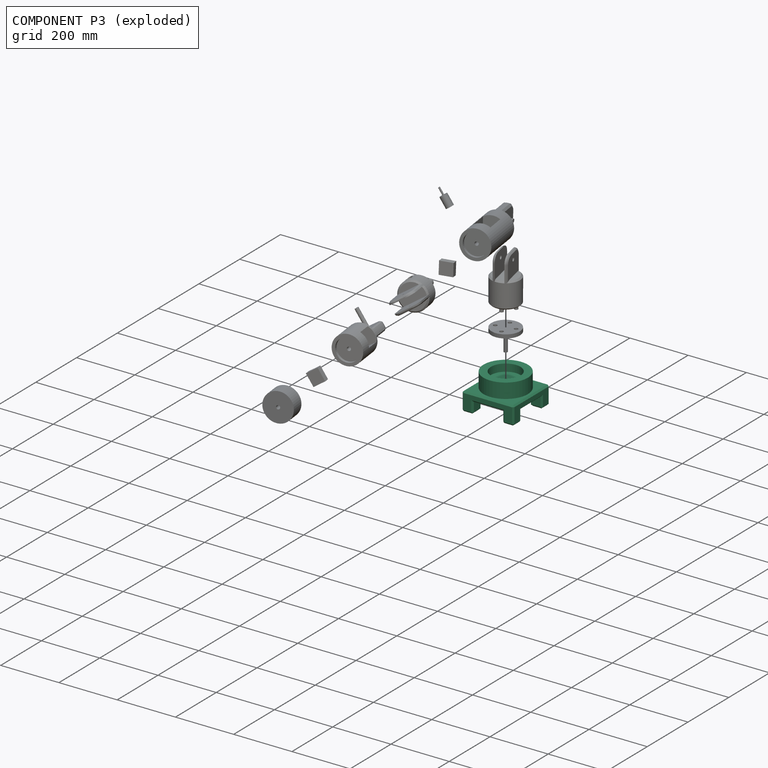
[diagram: component P3 — exploded]
COMPONENT P3 — recipe-attached (CADFS 00554219, mesh-verified: the recipe's output STEP matches this component's geometry to below the mesh-comparison resolution (tessellation chordal tolerance ~0.414 mm)).
Held by: REVOLUTE mate "Revolute 6" to P7.
Construction recipe (FeatureScript — the CAD program that rebuilds this solid; sketch coordinates are in the units given by the * unit suffixes, e.g. mm):

FeatureScript 1977;
import(path : "onshape/std/geometry.fs", version : "1977.0");
import(path : "onshape/std/common.fs", version : "1977.0");
const mm = millimeter;
const VERTEX = EntityType.VERTEX;
const EDGE = EntityType.EDGE;
const FACE = EntityType.FACE;
const BODY = EntityType.BODY;
function v(x, y){return vector(x, y);}
function OD(order){return orderDisambiguation(order);}
function OSD(set){return originalSetDisambiguation(set);}
function TD(topology){return topologyDisambiguation(topology);}
function TDD(query){return trueDependencyDisambiguation(query);}
function sQuery(a, b, c) {return sketchEntityQuery(a, b, c);}

annotation { "Feature Type Name" : "Feature", "Feature Type Description" : "" }
export const myFeature = defineFeature(function(context is Context, id is Id, definition is map)
    precondition{}
    {
        {
            var Q0;
            Q0=qCreatedBy(makeId("Top.planeOp"),FACE);
            var sketch = newSketch(context, id + "F0", { "sketchPlane" : qUnion([Q0])});
            skCircle(sketch, "E0", {"center": v(0, 0) * mm, "radius": 76.2 * mm});
            skSolve(sketch);
        }
        {
            var Q0;
            Q0 = qSketchRegion(id + "F0", true);
            extrude(context, id + "F1", {"entities" : qUnion([Q0]), "depth" : 25.4 * mm, "offsetDistance" : 25.4 * mm});
        }
        {
            var Q0;
            Q0=makeQuery(id+"F1.opExtrude","CAP_FACE",FACE,{"disambiguationData":[OSD([sQuery(id+"F0.wireOp",EDGE,"E0")])],"isStart":false});
            var sketch = newSketch(context, id + "F2", { "sketchPlane" : qUnion([Q0])});
            skCircle(sketch, "E1", {"center": v(0, 0) * mm, "radius": 50.8 * mm});
            skSolve(sketch);
        }
        {
            var Q0;
            Q0=makeQuery(id+"F2.imprint","IMPRINT",FACE,{"disambiguationData":[TD([[makeQuery(id+"F2.imprint","IMPRINT",EDGE,{"derivedFrom":sQuery(id+"F2.wireOp",EDGE,"E1")}),-1.0]])]});
            extrude(context, id + "F3", {"entities" : qUnion([Q0]), "operationType" : NewBodyOperationType.ADD, "depth" : 25.4 * mm, "offsetDistance" : 25.4 * mm});
        }
        {
            var Q0;
            Q0=makeQuery(id+"F1.opExtrude","CAP_FACE",FACE,{"disambiguationData":[OSD([sQuery(id+"F0.wireOp",EDGE,"E0")])],"isStart":false});
            var sketch = newSketch(context, id + "F4", { "sketchPlane" : qUnion([Q0])});
            skCircle(sketch, "E2", {"center": v(0, 0) * mm, "radius": 6.35 * mm});
            skSolve(sketch);
        }
        {
            var Q0;
            Q0 = qSketchRegion(id + "F4", true);
            extrude(context, id + "F5", {"entities" : qUnion([Q0]), "operationType" : NewBodyOperationType.REMOVE, "oppositeDirection" : true, "depth" : 162.8 * mm, "offsetDistance" : 25.4 * mm});
        }
        {
            var Q0;
            Q0=makeQuery(id+"F1.opExtrude","CAP_FACE",FACE,{"disambiguationData":[OSD([sQuery(id+"F0.wireOp",EDGE,"E0")])],"isStart":true});
            var sketch = newSketch(context, id + "F6", { "sketchPlane" : qUnion([Q0])});
            skLineSegment(sketch, "E3.bottom", {"start": v(-88.9, 88.9) * mm, "end": v(88.9, 88.9) * mm});
            skLineSegment(sketch, "E3.top", {"start": v(-88.9, -88.9) * mm, "end": v(88.9, -88.9) * mm});
            skLineSegment(sketch, "E3.left", {"start": v(-88.9, 88.9) * mm, "end": v(-88.9, -88.9) * mm});
            skLineSegment(sketch, "E3.right", {"start": v(88.9, 88.9) * mm, "end": v(88.9, -88.9) * mm});
            skPoint(sketch, "E3.middle", {"position": v(0, 0) * mm});
            skSolve(sketch);
        }
        {
            var Q0;
            Q0 = qSketchRegion(id + "F6", true);
            extrude(context, id + "F7", {"entities" : qUnion([Q0]), "operationType" : NewBodyOperationType.ADD, "depth" : 25.4 * mm, "offsetDistance" : 25.4 * mm});
        }
        {
            var Q0;
            Q0=makeQuery(id+"F7.opExtrude","CAP_FACE",FACE,{"disambiguationData":[OSD([sQuery(id+"F6.wireOp",EDGE,"E3.bottom"),sQuery(id+"F6.wireOp",EDGE,"E3.top"),sQuery(id+"F6.wireOp",EDGE,"E3.left"),sQuery(id+"F6.wireOp",EDGE,"E3.right")])],"isStart":false});
            var sketch = newSketch(context, id + "F8", { "sketchPlane" : qUnion([Q0])});
            skCircle(sketch, "E4", {"center": v(0, 0) * mm, "radius": 6.35 * mm});
            skSolve(sketch);
        }
        {
            var Q0;
            Q0=makeQuery(id+"F8.imprint","IMPRINT",FACE,{"disambiguationData":[TD([[makeQuery(id+"F8.imprint","IMPRINT",EDGE,{"derivedFrom":sQuery(id+"F8.wireOp",EDGE,"E4")}),1.0]])]});
            extrude(context, id + "F9", {"entities" : qUnion([Q0]), "operationType" : NewBodyOperationType.REMOVE, "oppositeDirection" : true, "depth" : 67.82 * mm, "offsetDistance" : 25.4 * mm});
        }
        {
            var Q0;
            Q0=makeQuery(id+"F7.opExtrude","CAP_FACE",FACE,{"disambiguationData":[OSD([sQuery(id+"F6.wireOp",EDGE,"E3.bottom"),sQuery(id+"F6.wireOp",EDGE,"E3.top"),sQuery(id+"F6.wireOp",EDGE,"E3.left"),sQuery(id+"F6.wireOp",EDGE,"E3.right")])],"isStart":false});
            var sketch = newSketch(context, id + "F10", { "sketchPlane" : qUnion([Q0])});
            skLineSegment(sketch, "E5.bottom", {"start": v(-88.9, 88.9) * mm, "end": v(-50.8, 88.9) * mm});
            skLineSegment(sketch, "E5.top", {"start": v(-88.9, 50.8) * mm, "end": v(-50.8, 50.8) * mm});
            skLineSegment(sketch, "E5.left", {"start": v(-88.9, 88.9) * mm, "end": v(-88.9, 50.8) * mm});
            skLineSegment(sketch, "E5.right", {"start": v(-50.8, 88.9) * mm, "end": v(-50.8, 50.8) * mm});
            skLineSegment(sketch, "E6.bottom", {"start": v(-88.9, -88.9) * mm, "end": v(-50.8, -88.9) * mm});
            skLineSegment(sketch, "E6.top", {"start": v(-88.9, -50.8) * mm, "end": v(-50.8, -50.8) * mm});
            skLineSegment(sketch, "E6.left", {"start": v(-88.9, -88.9) * mm, "end": v(-88.9, -50.8) * mm});
            skLineSegment(sketch, "E6.right", {"start": v(-50.8, -88.9) * mm, "end": v(-50.8, -50.8) * mm});
            skLineSegment(sketch, "E7.bottom", {"start": v(88.9, 88.9) * mm, "end": v(50.8, 88.9) * mm});
            skLineSegment(sketch, "E7.top", {"start": v(88.9, 50.8) * mm, "end": v(50.8, 50.8) * mm});
            skLineSegment(sketch, "E7.left", {"start": v(88.9, 88.9) * mm, "end": v(88.9, 50.8) * mm});
            skLineSegment(sketch, "E7.right", {"start": v(50.8, 88.9) * mm, "end": v(50.8, 50.8) * mm});
            skLineSegment(sketch, "E8.bottom", {"start": v(88.9, -88.9) * mm, "end": v(50.8, -88.9) * mm});
            skLineSegment(sketch, "E8.top", {"start": v(88.9, -50.8) * mm, "end": v(50.8, -50.8) * mm});
            skLineSegment(sketch, "E8.left", {"start": v(88.9, -88.9) * mm, "end": v(88.9, -50.8) * mm});
            skLineSegment(sketch, "E8.right", {"start": v(50.8, -88.9) * mm, "end": v(50.8, -50.8) * mm});
            skSolve(sketch);
        }
        {
            var Q0;
            Q0 = qSketchRegion(id + "F10", true);
            extrude(context, id + "F11", {"entities" : qUnion([Q0]), "operationType" : NewBodyOperationType.ADD, "depth" : 38.1 * mm, "offsetDistance" : 25.4 * mm});
        }
        {
            var Q0;
            Q0=makeQuery(id+"F7.opExtrude","CAP_EDGE",EDGE,{"disambiguationData":[OSD([sQuery(id+"F6.wireOp",EDGE,"E3.bottom")])],"isStart":true});
            var Q1;
            Q1=makeQuery(id+"F7.opExtrude","CAP_EDGE",EDGE,{"disambiguationData":[OSD([sQuery(id+"F6.wireOp",EDGE,"E3.left")])],"isStart":true});
            var Q2;
            Q2=makeQuery(id+"F7.opExtrude","CAP_EDGE",EDGE,{"disambiguationData":[OSD([sQuery(id+"F6.wireOp",EDGE,"E3.right")])],"isStart":true});
            var Q3;
            Q3=makeQuery(id+"F7.opExtrude","CAP_EDGE",EDGE,{"disambiguationData":[OSD([sQuery(id+"F6.wireOp",EDGE,"E3.top")])],"isStart":true});
            var Q4;
            Q4=makeQuery(id+"F11.boolean.opBoolean","MERGE",FACE,{"derivedFrom":[makeQuery(id+"F7.opExtrude","SWEPT_FACE",FACE,{"disambiguationData":[OSD([sQuery(id+"F6.wireOp",EDGE,"E3.bottom")])]}),makeQuery(id+"F11.opExtrude","SWEPT_FACE",FACE,{"disambiguationData":[OSD([sQuery(id+"F10.wireOp",EDGE,"E5.bottom")])]}),makeQuery(id+"F11.opExtrude","SWEPT_FACE",FACE,{"disambiguationData":[OSD([sQuery(id+"F10.wireOp",EDGE,"E7.bottom")])]})]});
            var Q5;
            Q5=makeQuery(id+"F11.boolean.opBoolean","MERGE",FACE,{"derivedFrom":[makeQuery(id+"F7.opExtrude","SWEPT_FACE",FACE,{"disambiguationData":[OSD([sQuery(id+"F6.wireOp",EDGE,"E3.left")])]}),makeQuery(id+"F11.opExtrude","SWEPT_FACE",FACE,{"disambiguationData":[OSD([sQuery(id+"F10.wireOp",EDGE,"E5.left")])]}),makeQuery(id+"F11.opExtrude","SWEPT_FACE",FACE,{"disambiguationData":[OSD([sQuery(id+"F10.wireOp",EDGE,"E6.left")])]})]});
            var Q6;
            Q6=makeQuery(id+"F11.boolean.opBoolean","MERGE",FACE,{"derivedFrom":[makeQuery(id+"F7.opExtrude","SWEPT_FACE",FACE,{"disambiguationData":[OSD([sQuery(id+"F6.wireOp",EDGE,"E3.top")])]}),makeQuery(id+"F11.opExtrude","SWEPT_FACE",FACE,{"disambiguationData":[OSD([sQuery(id+"F10.wireOp",EDGE,"E6.bottom")])]}),makeQuery(id+"F11.opExtrude","SWEPT_FACE",FACE,{"disambiguationData":[OSD([sQuery(id+"F10.wireOp",EDGE,"E8.bottom")])]})]});
            var Q7;
            Q7=makeQuery(id+"F11.boolean.opBoolean","MERGE",FACE,{"derivedFrom":[makeQuery(id+"F7.opExtrude","SWEPT_FACE",FACE,{"disambiguationData":[OSD([sQuery(id+"F6.wireOp",EDGE,"E3.right")])]}),makeQuery(id+"F11.opExtrude","SWEPT_FACE",FACE,{"disambiguationData":[OSD([sQuery(id+"F10.wireOp",EDGE,"E7.left")])]}),makeQuery(id+"F11.opExtrude","SWEPT_FACE",FACE,{"disambiguationData":[OSD([sQuery(id+"F10.wireOp",EDGE,"E8.left")])]})]});
            chamfer(context, id + "F12", {"entities" : qUnion([Q0, Q1, Q2, Q3, Q4, Q5, Q6, Q7]), "width" : 5.08 * mm, "tangentPropagation" : true});
        }
        {
            var Q0;
            Q0=makeQuery(id+"F11.opExtrude","CAP_EDGE",EDGE,{"disambiguationData":[OSD([sQuery(id+"F10.wireOp",EDGE,"E5.right")])],"isStart":false});
            var Q1;
            Q1=makeQuery(id+"F11.opExtrude","CAP_EDGE",EDGE,{"disambiguationData":[OSD([sQuery(id+"F10.wireOp",EDGE,"E5.top")])],"isStart":false});
            var Q2;
            Q2=makeQuery(id+"F11.opExtrude","CAP_EDGE",EDGE,{"disambiguationData":[OSD([sQuery(id+"F10.wireOp",EDGE,"E7.right")])],"isStart":false});
            var Q3;
            Q3=makeQuery(id+"F11.opExtrude","CAP_EDGE",EDGE,{"disambiguationData":[OSD([sQuery(id+"F10.wireOp",EDGE,"E7.top")])],"isStart":false});
            var Q4;
            Q4=makeQuery(id+"F11.opExtrude","CAP_EDGE",EDGE,{"disambiguationData":[OSD([sQuery(id+"F10.wireOp",EDGE,"E6.top")])],"isStart":false});
            var Q5;
            Q5=makeQuery(id+"F11.opExtrude","CAP_EDGE",EDGE,{"disambiguationData":[OSD([sQuery(id+"F10.wireOp",EDGE,"E6.right")])],"isStart":false});
            var Q6;
            Q6=makeQuery(id+"F11.opExtrude","CAP_EDGE",EDGE,{"disambiguationData":[OSD([sQuery(id+"F10.wireOp",EDGE,"E8.top")])],"isStart":false});
            var Q7;
            Q7=makeQuery(id+"F11.opExtrude","CAP_EDGE",EDGE,{"disambiguationData":[OSD([sQuery(id+"F10.wireOp",EDGE,"E8.right")])],"isStart":false});
            chamfer(context, id + "F13", {"entities" : qUnion([Q0, Q1, Q2, Q3, Q4, Q5, Q6, Q7]), "width" : 5.08 * mm, "tangentPropagation" : true});
        }
    });
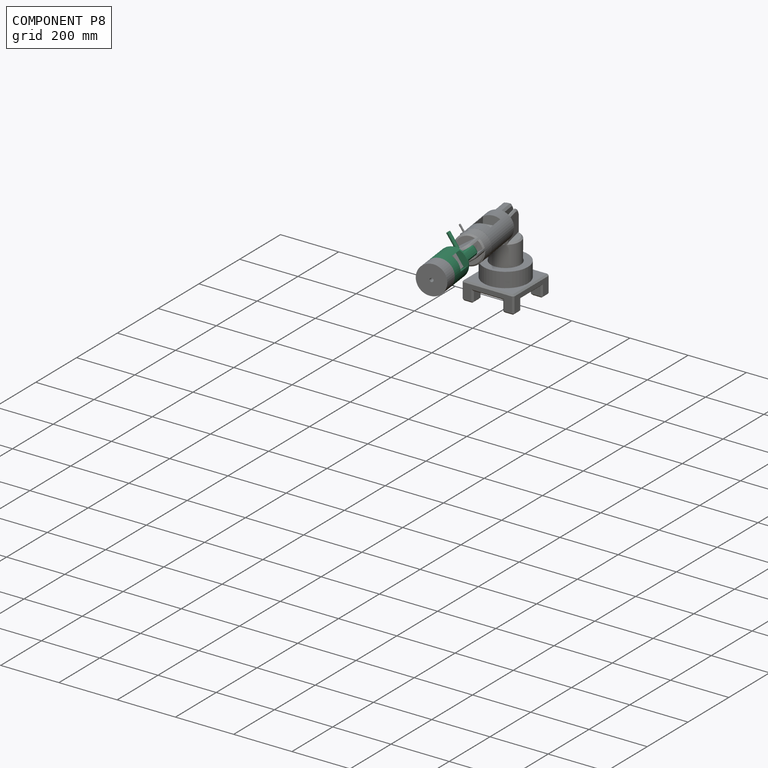
[diagram: component P8 — assembled]
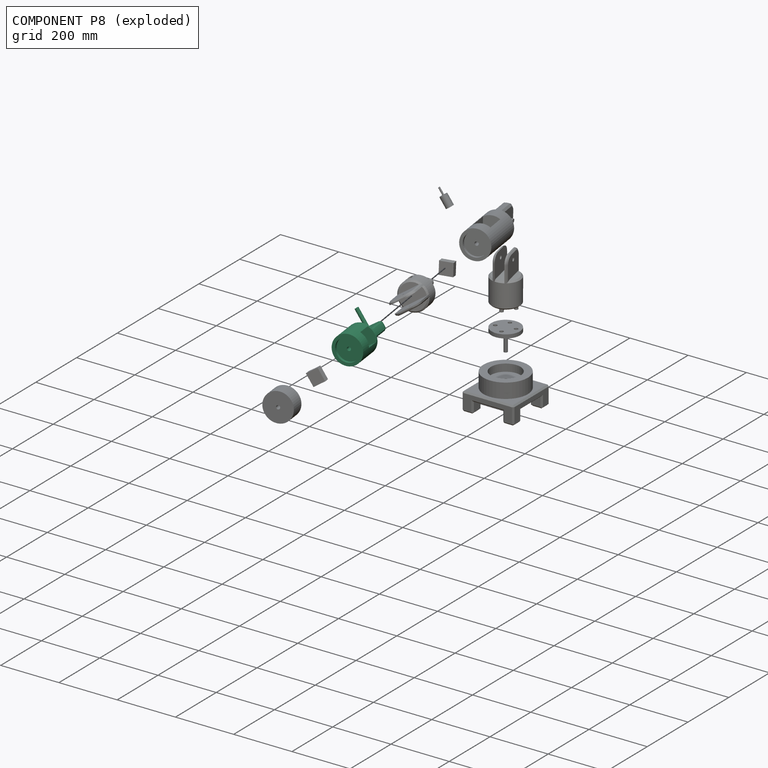
[diagram: component P8 — exploded]
COMPONENT P8 — recipe-attached (CADFS 00554225, mesh-verified: the recipe's output STEP matches this component's geometry to below the mesh-comparison resolution (tessellation chordal tolerance ~0.359 mm)).
Held by: REVOLUTE mate "Revolute 5" to P9; REVOLUTE mate "Revolute 4" to P4; FASTENED mate "Fastened 2" to P6.
Construction recipe (FeatureScript — the CAD program that rebuilds this solid; sketch coordinates are in the units given by the * unit suffixes, e.g. mm):

FeatureScript 1977;
import(path : "onshape/std/geometry.fs", version : "1977.0");
import(path : "onshape/std/common.fs", version : "1977.0");
const mm = millimeter;
const VERTEX = EntityType.VERTEX;
const EDGE = EntityType.EDGE;
const FACE = EntityType.FACE;
const BODY = EntityType.BODY;
function v(x, y){return vector(x, y);}
function OD(order){return orderDisambiguation(order);}
function OSD(set){return originalSetDisambiguation(set);}
function TD(topology){return topologyDisambiguation(topology);}
function TDD(query){return trueDependencyDisambiguation(query);}
function sQuery(a, b, c) {return sketchEntityQuery(a, b, c);}

annotation { "Feature Type Name" : "Feature", "Feature Type Description" : "" }
export const myFeature = defineFeature(function(context is Context, id is Id, definition is map)
    precondition{}
    {
        {
            var Q0;
            Q0=qCreatedBy(makeId("Top.planeOp"),FACE);
            var sketch = newSketch(context, id + "F0", { "sketchPlane" : qUnion([Q0])});
            skCircle(sketch, "E0", {"center": v(0, 0) * mm, "radius": 48.9 * mm});
            skSolve(sketch);
        }
        {
            var Q0;
            Q0=makeQuery(id+"F0.imprint","IMPRINT",FACE,{"disambiguationData":[TD([[makeQuery(id+"F0.imprint","IMPRINT",EDGE,{"derivedFrom":sQuery(id+"F0.wireOp",EDGE,"E0")}),1.0]])]});
            extrude(context, id + "F1", {"entities" : qUnion([Q0]), "depth" : 101.6 * mm, "offsetDistance" : 25.4 * mm});
        }
        {
            var Q0;
            Q0=makeQuery(id+"F1.opExtrude","CAP_FACE",FACE,{"disambiguationData":[OSD([sQuery(id+"F0.wireOp",EDGE,"E0")])],"isStart":true});
            var sketch = newSketch(context, id + "F2", { "sketchPlane" : qUnion([Q0])});
            skLineSegment(sketch, "E1.bottom", {"start": v(0, 43.76) * mm, "end": v(0, 43.76) * mm});
            skLineSegment(sketch, "E1.top", {"start": v(0, -43.76) * mm, "end": v(0, -43.76) * mm});
            skPoint(sketch, "E1.middle", {"position": v(0, 0) * mm});
            skLineSegment(sketch, "E2.bottom", {"start": v(14.77, 49.25) * mm, "end": v(-14.77, 49.25) * mm});
            skLineSegment(sketch, "E2.top", {"start": v(14.77, -49.25) * mm, "end": v(-14.77, -49.25) * mm});
            skLineSegment(sketch, "E2.left", {"start": v(14.77, 49.25) * mm, "end": v(14.77, -49.25) * mm});
            skLineSegment(sketch, "E2.right", {"start": v(-14.77, 49.25) * mm, "end": v(-14.77, -49.25) * mm});
            skSolve(sketch);
        }
        {
            var Q0;
            {var subQ0=sQuery(id+"F2.wireOp",EDGE,"E2.left");var subQ1=makeQuery(id+"F1.opExtrude","CAP_EDGE",EDGE,{"disambiguationData":[OSD([sQuery(id+"F0.wireOp",EDGE,"E0")])],"isStart":true});var subQ2=makeQuery(id+"F2.imprint","INTERSECT",VERTEX,{"disambiguationData":[OD(0.0)],"derivedFrom":[subQ1,subQ0]});Q0=makeQuery(id+"F2.imprint","IMPRINT",FACE,{"disambiguationData":[TD([[makeQuery(id+"F2.imprint","IMPRINT",EDGE,{"disambiguationData":[TD([[subQ2,-1.0]])],"derivedFrom":subQ0}),-1.0]])]});}
            extrude(context, id + "F3", {"entities" : qUnion([Q0]), "operationType" : NewBodyOperationType.ADD, "depth" : 76.2 * mm, "offsetDistance" : 25.4 * mm});
        }
        {
            var Q0;
            {var subQ0=sQuery(id+"F0.wireOp",EDGE,"E0");var subQ1=makeQuery(id+"F1.opExtrude","CAP_EDGE",EDGE,{"disambiguationData":[OSD([subQ0])],"isStart":true});Q0=makeQuery(id+"F3.opExtrude","CAP_EDGE",EDGE,{"disambiguationData":[OSD([subQ0]),TDD([makeQuery(id+"F2.imprint","IMPRINT",EDGE,{"disambiguationData":[TD([[makeQuery(id+"F2.imprint","INTERSECT",VERTEX,{"disambiguationData":[OD(1.0)],"derivedFrom":[subQ1,sQuery(id+"F2.wireOp",EDGE,"E2.left")]}),-1.0]])],"derivedFrom":subQ1})])],"isStart":false});}
            var Q1;
            {var subQ0=sQuery(id+"F0.wireOp",EDGE,"E0");var subQ1=makeQuery(id+"F1.opExtrude","CAP_EDGE",EDGE,{"disambiguationData":[OSD([subQ0])],"isStart":true});Q1=makeQuery(id+"F3.opExtrude","CAP_EDGE",EDGE,{"disambiguationData":[OSD([subQ0]),TDD([makeQuery(id+"F2.imprint","IMPRINT",EDGE,{"disambiguationData":[TD([[makeQuery(id+"F2.imprint","INTERSECT",VERTEX,{"disambiguationData":[OD(0.0)],"derivedFrom":[subQ1,sQuery(id+"F2.wireOp",EDGE,"E2.left")]}),1.0]])],"derivedFrom":subQ1})])],"isStart":false});}
            fillet(context, id + "F4", {"entities" : qUnion([Q0, Q1]), "radius" : 25.4 * mm, "tangentPropagation" : true, "allowEdgeOverflow" : false});
        }
        {
            var Q0;
            Q0=makeQuery(id+"F3.opExtrude","SWEPT_FACE",FACE,{"disambiguationData":[OSD([sQuery(id+"F2.wireOp",EDGE,"E2.left")])]});
            var sketch = newSketch(context, id + "F5", { "sketchPlane" : qUnion([Q0])});
            skLineSegment(sketch, "E3", {"start": v(0, 0) * mm, "end": v(0, -50.8) * mm});
            skPoint(sketch, "E3.endSnap0", {"position": v(0, 0) * mm});
            skCircle(sketch, "E4", {"center": v(0, -50.8) * mm, "radius": 6.35 * mm});
            skSolve(sketch);
        }
        {
            var Q0;
            Q0=makeQuery(id+"F5.imprint","IMPRINT",FACE,{"disambiguationData":[TD([[makeQuery(id+"F5.imprint","IMPRINT",EDGE,{"derivedFrom":sQuery(id+"F5.wireOp",EDGE,"E4")}),1.0]])]});
            extrude(context, id + "F6", {"entities" : qUnion([Q0]), "operationType" : NewBodyOperationType.ADD, "depth" : 63.5 * mm, "offsetDistance" : 25.4 * mm});
        }
        {
            var Q0;
            Q0=makeQuery(id+"F3.opExtrude","SWEPT_FACE",FACE,{"disambiguationData":[OSD([sQuery(id+"F2.wireOp",EDGE,"E2.right")])]});
            var sketch = newSketch(context, id + "F7", { "sketchPlane" : qUnion([Q0])});
            skLineSegment(sketch, "E5", {"start": v(0, 0) * mm, "end": v(0, -50.8) * mm});
            skPoint(sketch, "E5.endSnap0", {"position": v(0, 0) * mm});
            skCircle(sketch, "E6", {"center": v(0, -50.8) * mm, "radius": 6.35 * mm});
            skSolve(sketch);
        }
        {
            var Q0;
            Q0 = qSketchRegion(id + "F7", true);
            extrude(context, id + "F8", {"entities" : qUnion([Q0]), "operationType" : NewBodyOperationType.ADD, "depth" : 8.56 * mm, "offsetDistance" : 25.4 * mm});
        }
        {
            var Q0;
            Q0=makeQuery(id+"F1.opExtrude","CAP_FACE",FACE,{"disambiguationData":[OSD([sQuery(id+"F0.wireOp",EDGE,"E0")])],"isStart":false});
            var sketch = newSketch(context, id + "F9", { "sketchPlane" : qUnion([Q0])});
            skCircle(sketch, "E7", {"center": v(0, 0) * mm, "radius": 38.1 * mm});
            skSolve(sketch);
        }
        {
            var Q0;
            Q0=makeQuery(id+"F9.imprint","IMPRINT",FACE,{"disambiguationData":[TD([[makeQuery(id+"F9.imprint","IMPRINT",EDGE,{"derivedFrom":sQuery(id+"F9.wireOp",EDGE,"E7")}),1.0]])]});
            extrude(context, id + "F10", {"entities" : qUnion([Q0]), "operationType" : NewBodyOperationType.REMOVE, "oppositeDirection" : true, "depth" : 10.16 * mm, "offsetDistance" : 25.4 * mm});
        }
        {
            var Q0;
            Q0=makeQuery(id+"F10.boolean.opBoolean","COPY",FACE,{"derivedFrom":makeQuery(id+"F10.opExtrude","CAP_FACE",FACE,{"disambiguationData":[OSD([sQuery(id+"F9.wireOp",EDGE,"E7")])],"isStart":false})});
            var sketch = newSketch(context, id + "F11", { "sketchPlane" : qUnion([Q0])});
            skCircle(sketch, "E8", {"center": v(0, 0) * mm, "radius": 6.35 * mm});
            skSolve(sketch);
        }
        {
            var Q0;
            Q0 = qSketchRegion(id + "F11", true);
            extrude(context, id + "F12", {"entities" : qUnion([Q0]), "operationType" : NewBodyOperationType.ADD, "oppositeDirection" : true, "depth" : 50.8 * mm, "offsetDistance" : 25.4 * mm});
        }
        {
            var Q0;
            Q0=qCreatedBy(makeId("Front.planeOp"),FACE);
            var sketch = newSketch(context, id + "F13", { "sketchPlane" : qUnion([Q0])});
            skLineSegment(sketch, "E9.bottom", {"start": v(-25.4, 113.97) * mm, "end": v(25.4, 113.97) * mm});
            skLineSegment(sketch, "E9.top", {"start": v(-25.4, 177.05) * mm, "end": v(25.4, 177.05) * mm});
            skLineSegment(sketch, "E9.left", {"start": v(-25.4, 113.97) * mm, "end": v(-25.4, 177.05) * mm});
            skLineSegment(sketch, "E9.right", {"start": v(25.4, 113.97) * mm, "end": v(25.4, 177.05) * mm});
            skPoint(sketch, "E9.middle", {"position": v(0, 145.51) * mm});
            skSolve(sketch);
        }
        {
            var Q0;
            Q0 = qSketchRegion(id + "F13", true);
            extrude(context, id + "F14", {"entities" : qUnion([Q0]), "operationType" : NewBodyOperationType.REMOVE, "depth" : 90.68 * mm, "offsetDistance" : 25.4 * mm});
        }
        {
            var Q0;
            Q0 = qSketchRegion(id + "F13", true);
            extrude(context, id + "F15", {"entities" : qUnion([Q0]), "operationType" : NewBodyOperationType.REMOVE, "oppositeDirection" : true, "depth" : 24.13 * mm, "offsetDistance" : 25.4 * mm});
        }
        {
            var Q0;
            Q0 = qSketchRegion(id + "F11", true);
            extrude(context, id + "F16", {"entities" : qUnion([Q0]), "operationType" : NewBodyOperationType.REMOVE, "oppositeDirection" : true, "depth" : 41.4 * mm, "offsetDistance" : 25.4 * mm});
        }
        {
            var Q0;
            Q0=qCreatedBy(makeId("Front.planeOp"),FACE);
            var sketch = newSketch(context, id + "F17", { "sketchPlane" : qUnion([Q0])});
            skLineSegment(sketch, "E10.bottom", {"start": v(-25.4, 11.5) * mm, "end": v(25.4, 11.5) * mm});
            skLineSegment(sketch, "E10.top", {"start": v(-25.4, 62.3) * mm, "end": v(25.4, 62.3) * mm});
            skLineSegment(sketch, "E10.left", {"start": v(-25.4, 11.5) * mm, "end": v(-25.4, 62.3) * mm});
            skLineSegment(sketch, "E10.right", {"start": v(25.4, 11.5) * mm, "end": v(25.4, 62.3) * mm});
            skPoint(sketch, "E10.middle", {"position": v(0, 36.9) * mm});
            skSolve(sketch);
        }
        {
            var Q0;
            Q0 = qSketchRegion(id + "F17", true);
            extrude(context, id + "F18", {"entities" : qUnion([Q0]), "operationType" : NewBodyOperationType.REMOVE, "depth" : 80.52 * mm, "offsetDistance" : 25.4 * mm});
        }
        {
            var Q0;
            Q0=makeQuery(id+"F18.boolean.opBoolean","COPY",FACE,{"derivedFrom":makeQuery(id+"F18.opExtrude","CAP_FACE",FACE,{"disambiguationData":[OSD([sQuery(id+"F17.wireOp",EDGE,"E10.bottom"),sQuery(id+"F17.wireOp",EDGE,"E10.top"),sQuery(id+"F17.wireOp",EDGE,"E10.left"),sQuery(id+"F17.wireOp",EDGE,"E10.right")])],"isStart":true})});
            extrude(context, id + "F19", {"entities" : qUnion([Q0]), "operationType" : NewBodyOperationType.REMOVE, "oppositeDirection" : true, "depth" : 36.32 * mm, "offsetDistance" : 25.4 * mm});
        }
        {
            var Q0;
            {var subQ0=sQuery(id+"F17.wireOp",EDGE,"E10.right");var subQ1=sQuery(id+"F17.wireOp",EDGE,"E10.left");var subQ2=sQuery(id+"F17.wireOp",EDGE,"E10.top");var subQ3=sQuery(id+"F17.wireOp",EDGE,"E10.bottom");var subQ4=sQuery(id+"F11.wireOp",EDGE,"E8");Q0=makeQuery(id+"F19.boolean.opBoolean","COPY",FACE,{"derivedFrom":makeQuery(id+"F19.opExtrude","SWEPT_FACE",FACE,{"disambiguationData":[OSD([subQ4,subQ3,subQ2,subQ1,subQ0]),TDD([makeQuery(id+"F18.boolean.opBoolean","INTERSECT",EDGE,{"derivedFrom":[makeQuery(id+"F16.boolean.opBoolean","COPY",FACE,{"derivedFrom":makeQuery(id+"F16.opExtrude","CAP_FACE",FACE,{"disambiguationData":[OSD([subQ4])],"isStart":false})}),makeQuery(id+"F18.opExtrude","CAP_FACE",FACE,{"disambiguationData":[OSD([subQ3,subQ2,subQ1,subQ0])],"isStart":true})]})])]})});}
            extrude(context, id + "F20", {"entities" : qUnion([Q0]), "operationType" : NewBodyOperationType.REMOVE, "oppositeDirection" : true, "depth" : 14.73 * mm, "offsetDistance" : 25.4 * mm});
        }
        {
            var Q0;
            {var subQ0=sQuery(id+"F2.wireOp",EDGE,"E2.right");var subQ1=sQuery(id+"F0.wireOp",EDGE,"E0");var subQ2=makeQuery(id+"F1.opExtrude","CAP_EDGE",EDGE,{"disambiguationData":[OSD([subQ1])],"isStart":true});Q0=makeQuery(id+"F4.opFillet","BLEND_EDGE",EDGE,{"blendedFrom":[makeQuery(id+"F3.opExtrude","CAP_EDGE",EDGE,{"disambiguationData":[OSD([subQ1]),TDD([makeQuery(id+"F2.imprint","IMPRINT",EDGE,{"disambiguationData":[TD([[makeQuery(id+"F2.imprint","INTERSECT",VERTEX,{"disambiguationData":[OD(0.0)],"derivedFrom":[subQ2,sQuery(id+"F2.wireOp",EDGE,"E2.left")]}),1.0]])],"derivedFrom":subQ2})])],"isStart":false}),makeQuery(id+"F3.opExtrude","SWEPT_FACE",FACE,{"disambiguationData":[OSD([subQ0])]})],"blendedInto":[makeQuery(id+"F3.opExtrude","SWEPT_FACE",FACE,{"disambiguationData":[OSD([subQ0])]})]});}
            var Q1;
            {var subQ1=sQuery(id+"F0.wireOp",EDGE,"E0");var subQ2=makeQuery(id+"F1.opExtrude","CAP_EDGE",EDGE,{"disambiguationData":[OSD([subQ1])],"isStart":true});var subQ3=sQuery(id+"F2.wireOp",EDGE,"E2.right");Q1=makeQuery(id+"F3.boolean.opBoolean","SPLIT",EDGE,{"disambiguationData":[TD([makeQuery(id+"F3.opExtrude","SWEPT_FACE",FACE,{"disambiguationData":[OSD([subQ3])]})])],"derivedFrom":subQ2});}
            var Q2;
            {var subQ0=sQuery(id+"F2.wireOp",EDGE,"E2.left");var subQ1=sQuery(id+"F0.wireOp",EDGE,"E0");var subQ2=makeQuery(id+"F1.opExtrude","CAP_EDGE",EDGE,{"disambiguationData":[OSD([subQ1])],"isStart":true});Q2=makeQuery(id+"F3.boolean.opBoolean","SPLIT",EDGE,{"disambiguationData":[TD([makeQuery(id+"F3.opExtrude","SWEPT_FACE",FACE,{"disambiguationData":[OSD([subQ0])]})])],"derivedFrom":subQ2});}
            var Q3;
            {var subQ0=sQuery(id+"F2.wireOp",EDGE,"E2.left");var subQ1=sQuery(id+"F0.wireOp",EDGE,"E0");Q3=makeQuery(id+"F3.opExtrude","SWEPT_EDGE",EDGE,{"disambiguationData":[OSD([subQ1,subQ0]),TDD([makeQuery(id+"F2.imprint","INTERSECT",VERTEX,{"disambiguationData":[OD(0.0)],"derivedFrom":[makeQuery(id+"F1.opExtrude","CAP_EDGE",EDGE,{"disambiguationData":[OSD([subQ1])],"isStart":true}),subQ0]})])]});}
            chamfer(context, id + "F21", {"entities" : qUnion([Q0, Q1, Q2, Q3]), "width" : 5.08 * mm, "tangentPropagation" : true});
        }
    });
